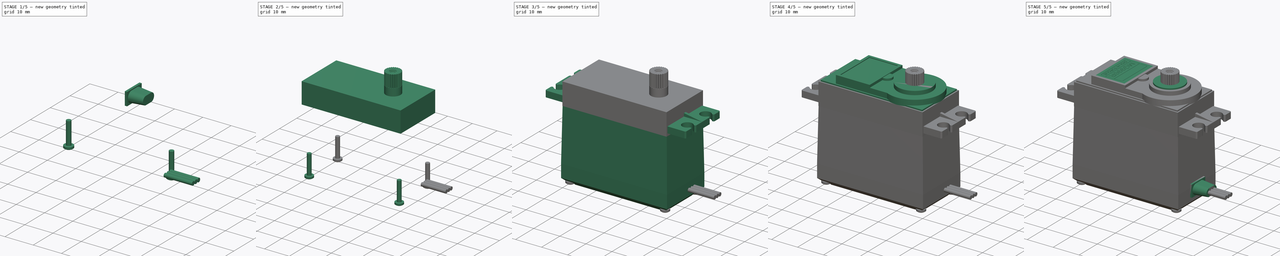
[diagram: build sequence overview — one tinted view per stage of 5, left to right]
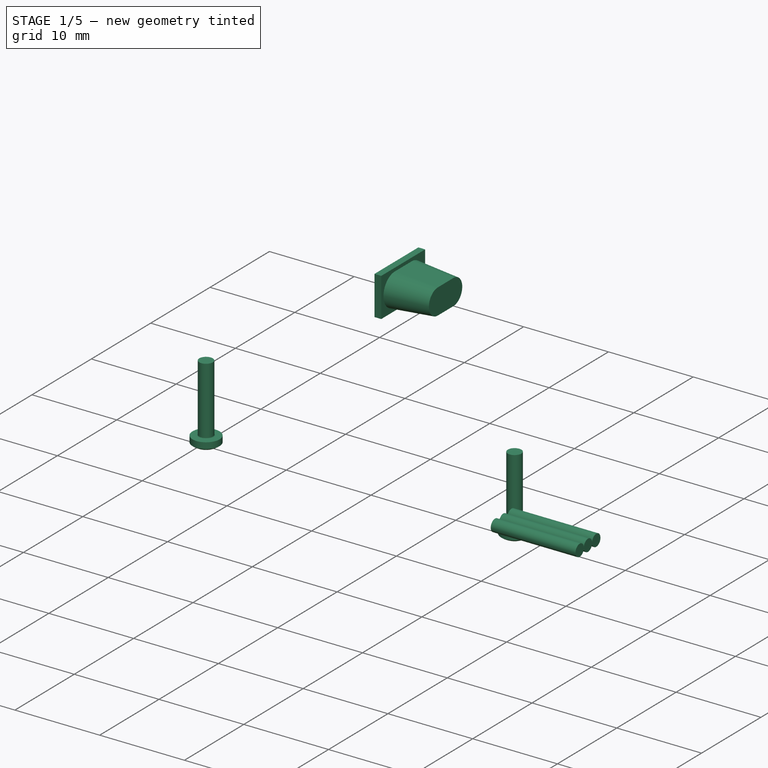
[diagram: stage 1 of 5 — iso view after this stage's code; geometry added in this stage tinted green]
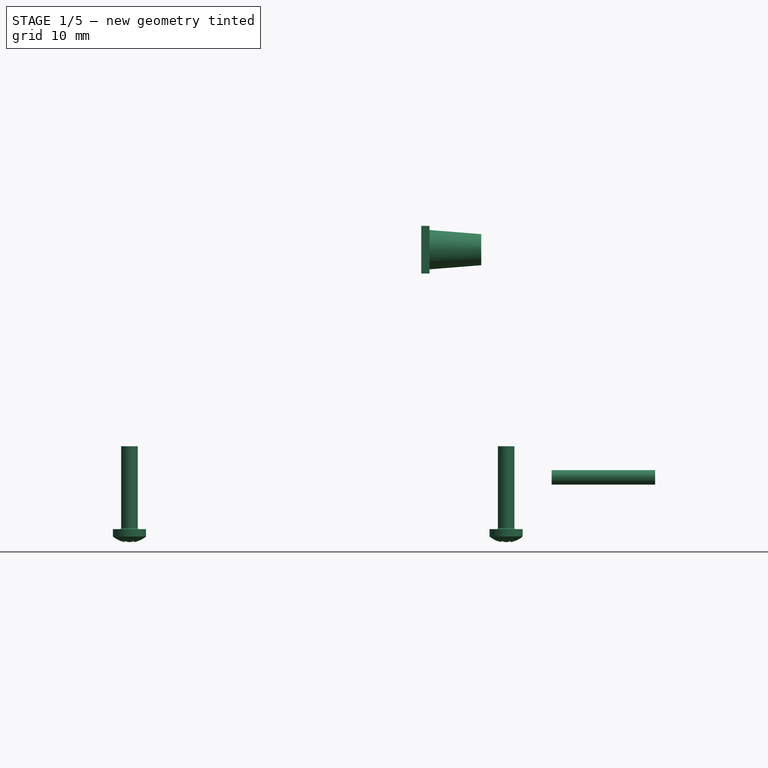
[diagram: stage 1 of 5 — front view after this stage's code; geometry added in this stage tinted green]
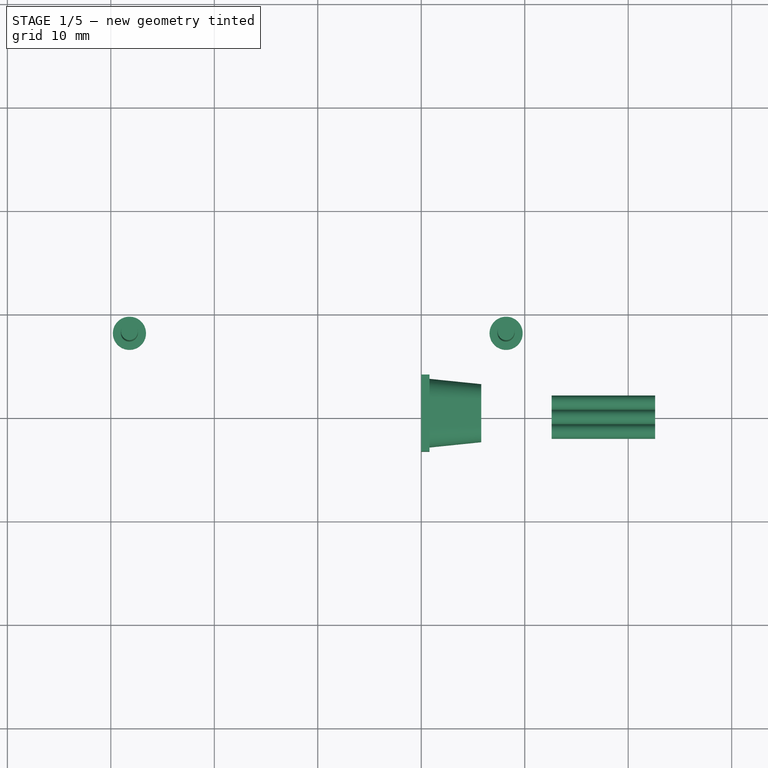
[diagram: stage 1 of 5 — top view after this stage's code; geometry added in this stage tinted green]
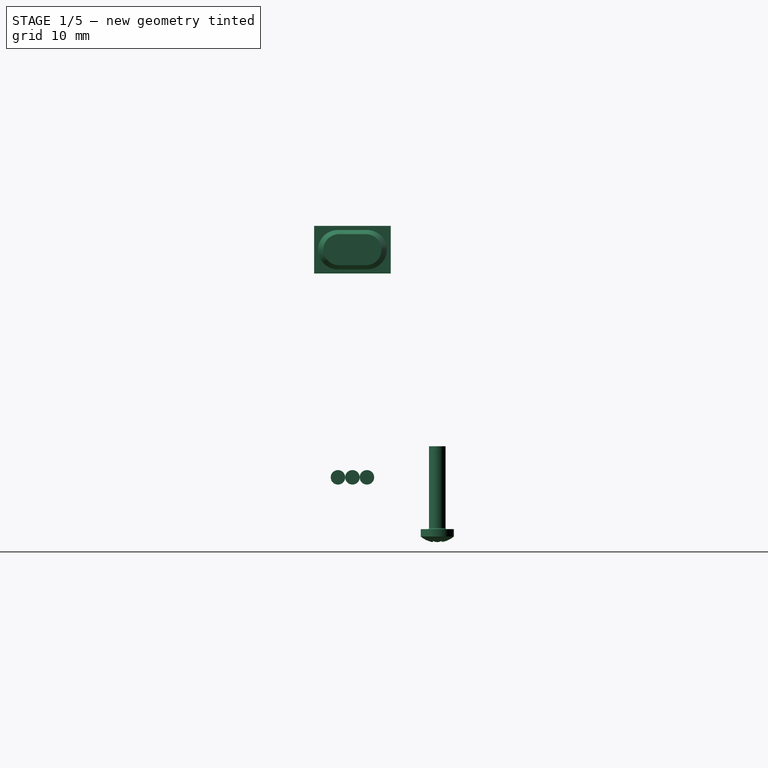
[diagram: stage 1 of 5 — right view after this stage's code; geometry added in this stage tinted green]
FCSTD DOCUMENT  (FreeCAD 0.21R33771 (Git))
Label: mg996R_v2
License: All rights reserved
LicenseURL: http://en.wikipedia.org/wiki/All_rights_reserved
objects: Sketcher::SketchObject×25, PartDesign::Pad×14, PartDesign::Pocket×8, PartDesign::Body×4, Part::Part2DObjectPython×4, Part::FeaturePython×4, Part::Cylinder×3, PartDesign::Plane×2, PartDesign::Mirrored×1, PartDesign::Chamfer×1, PartDesign::Hole×1, PartDesign::PolarPattern×1, App::TextDocument×1, Part::Feature×1, PartDesign::AdditiveLoft×1, Part::Compound×1
note: 96 computed .brp shape members not serialized (recipe doc carries the construction recipe); baked Part::Feature solids carry a one-line shape summary decoded from their .brp

FEATURE [Part::FeaturePython] Screw002  label="M1.6x8-Screw005"  # Fasteners workbench fastener (typed FeaturePython)
  Placement = pos=(-28.2,8.2,-27) rot=(1,0,0;3.14159rad)
  diameter = 1
  invert = false
  leftHanded = false
  length = 4
  lengthCustom = 8
  matchOuter = false
  offset = 0
  thread = false
  type = 46
FEATURE [Part::FeaturePython] Screw003  label="M1.6x8-Screw006"  # Fasteners workbench fastener (typed FeaturePython)
  Placement = pos=(8.2,8.2,-27) rot=(1,0,0;3.14159rad)
  diameter = 1
  invert = false
  leftHanded = false
  length = 4
  lengthCustom = 8
  matchOuter = false
  offset = 0
  thread = false
  type = 46
FEATURE [Sketcher::SketchObject] Sketch023
  FullyConstrained = true
  MapMode = 5
  Placement = pos=(0,0,0) rot=(0.57735,0.57735,0.57735;2.0944rad)
  Support = -> [YZ_Plane003]
  sketch-geometry (5):
    g0: LineSegment StartX=3.7 StartY=-2.3 StartZ=0 EndX=3.7 EndY=2.3 EndZ=0
    g1: LineSegment StartX=3.7 StartY=2.3 StartZ=0 EndX=-3.7 EndY=2.3 EndZ=0
    g2: LineSegment StartX=-3.7 StartY=2.3 StartZ=0 EndX=-3.7 EndY=-2.3 EndZ=0
    g3: LineSegment StartX=-3.7 StartY=-2.3 StartZ=0 EndX=3.7 EndY=-2.3 EndZ=0
    g4: GeomPoint X=0 Y=0 Z=0
  constraints (12):
    c: Coincident(g0,g1)
    c: Coincident(g1,g2)
    c: Coincident(g2,g3)
    c: Coincident(g3,g0)
    c: Horizontal(g1)
    c: Horizontal(g3)
    c: Vertical(g0)
    c: Vertical(g2)
    c: Symmetric(g1,g0,g4)
    c: Coincident(g4,g-1)
    c: DistanceX(g3,g3) = 7.4
    c: DistanceY(g0,g0) = 4.6
FEATURE [PartDesign::Pad] Pad013
  Direction = (1,-2e-16,3e-16)
  Length = 0.8
  Length2 = 10
  Placement = pos=(0,0,0) rot=(0.57735,0.57735,0.57735;2.0944rad)
  Profile = -> Sketch023
  ReferenceAxis = -> Sketch023 [N_Axis]
  Type = 0
FEATURE [Sketcher::SketchObject] Sketch024
  FullyConstrained = false
  MapMode = 5
  Placement = pos=(0.8,-2e-16,2e-16) rot=(0.57735,0.57735,0.57735;2.0944rad)
  Support = -> [Pad013]
  sketch-geometry (4):
    g0: ArcOfCircle CenterX=-1.42008 CenterY=0 CenterZ=0 NormalX=0 NormalY=0 NormalZ=1 AngleXU=0 Radius=1.9 StartAngle=1.5708 EndAngle=4.71239
    g1: ArcOfCircle CenterX=1.42008 CenterY=0 CenterZ=0 NormalX=0 NormalY=0 NormalZ=1 AngleXU=0 Radius=1.9 StartAngle=4.71239 EndAngle=7.85398
    g2: LineSegment StartX=-1.42008 StartY=-1.9 StartZ=0 EndX=1.42008 EndY=-1.9 EndZ=0
    g3: LineSegment StartX=1.42008 StartY=1.9 StartZ=0 EndX=-1.42008 EndY=1.9 EndZ=0
  constraints (8):
    c: Tangent(g0,g2) = -1.5708
    c: Tangent(g2,g1) = -1.5708
    c: Tangent(g1,g3) = -1.5708
    c: Tangent(g3,g0) = -1.5708
    c: Equal(g0,g1)
    c: PointOnObject(g0,g-1)
    c: Symmetric(g1,g0,g-2)
    c: DistanceY(g1,g1) = 3.8
FEATURE [Sketcher::SketchObject] Sketch025
  AttachmentOffset = pos=(0,0,5) rot=(0,0,1;0rad)
  FullyConstrained = false
  MapMode = 5
  Placement = pos=(5.8,-1.3e-15,1.3e-15) rot=(0.57735,0.57735,0.57735;2.0944rad)
  Support = -> [Pad013]
  sketch-geometry (4):
    g0: ArcOfCircle CenterX=-1.30738 CenterY=0 CenterZ=0 NormalX=0 NormalY=0 NormalZ=1 AngleXU=0 Radius=1.5 StartAngle=1.5708 EndAngle=4.71239
    g1: ArcOfCircle CenterX=1.30738 CenterY=0 CenterZ=0 NormalX=0 NormalY=0 NormalZ=1 AngleXU=0 Radius=1.5 StartAngle=4.71239 EndAngle=7.85398
    g2: LineSegment StartX=-1.30738 StartY=-1.5 StartZ=0 EndX=1.30738 EndY=-1.5 EndZ=0
    g3: LineSegment StartX=1.30738 StartY=1.5 StartZ=0 EndX=-1.30738 EndY=1.5 EndZ=0
  constraints (8):
    c: Tangent(g0,g2) = -1.5708
    c: Tangent(g2,g1) = -1.5708
    c: Tangent(g1,g3) = -1.5708
    c: Tangent(g3,g0) = -1.5708
    c: Equal(g0,g1)
    c: PointOnObject(g0,g-1)
    c: DistanceY(g1,g1) = 3
    c: Symmetric(g0,g1,g-2)
FEATURE [PartDesign::AdditiveLoft] AdditiveLoft
  BaseFeature = -> Pad013
  Closed = false
  Placement = pos=(0,0,0) rot=(0.57735,0.57735,0.57735;2.0944rad)
  Profile = -> Sketch024
  Ruled = false
  Sections = -> [Sketch025]
FEATURE [PartDesign::Body] Body004  label="sortie_fils"
  Group = -> [Sketch023,Pad013,Sketch024,Sketch025,AdditiveLoft]
  Origin = -> Origin003
  Placement = pos=(10.2,0,-22) rot=(0,0,1;0rad)
  Tip = -> AdditiveLoft
FEATURE [Part::Cylinder] Cylinder  label="Cylindre"
  Angle = 360
  AttacherType = Attacher::AttachEngine3D
  FirstAngle = 0
  Height = 10
  Placement = pos=(12.6,0,-22) rot=(0,1,0;1.5708rad)
  Radius = 0.7
  SecondAngle = 0
FEATURE [Part::Cylinder] Cylinder001  label="Cylindre001"
  Angle = 360
  AttacherType = Attacher::AttachEngine3D
  FirstAngle = 0
  Height = 10
  Placement = pos=(12.6,1.4,-22) rot=(0,1,0;1.5708rad)
  Radius = 0.7
  SecondAngle = 0
FEATURE [Part::Cylinder] Cylinder002  label="Cylindre002"
  Angle = 360
  AttacherType = Attacher::AttachEngine3D
  FirstAngle = 0
  Height = 10
  Placement = pos=(12.6,-1.4,-22) rot=(0,1,0;1.5708rad)
  Radius = 0.7
  SecondAngle = 0
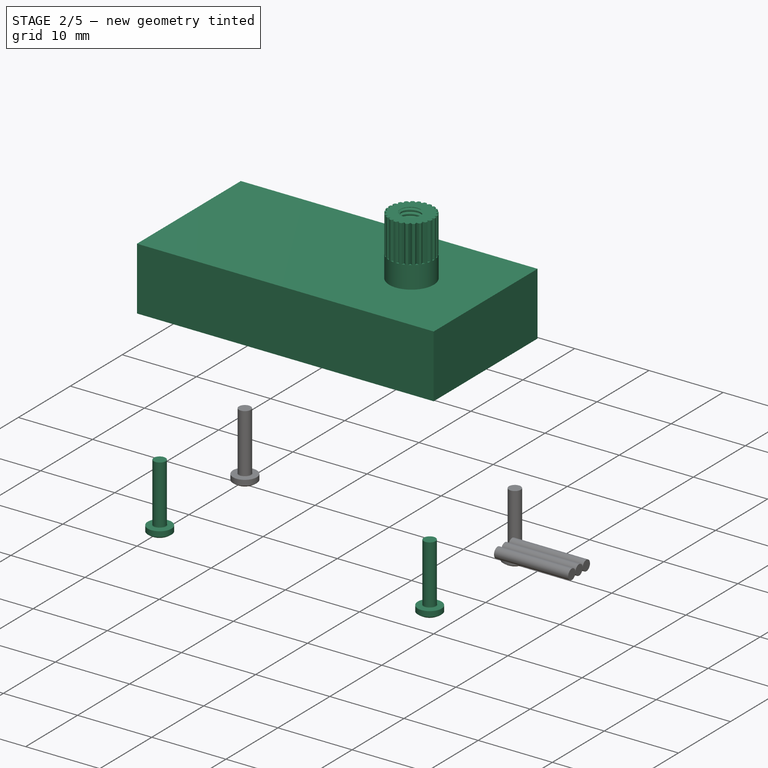
[diagram: stage 2 of 5 — iso view after this stage's code; geometry added in this stage tinted green]
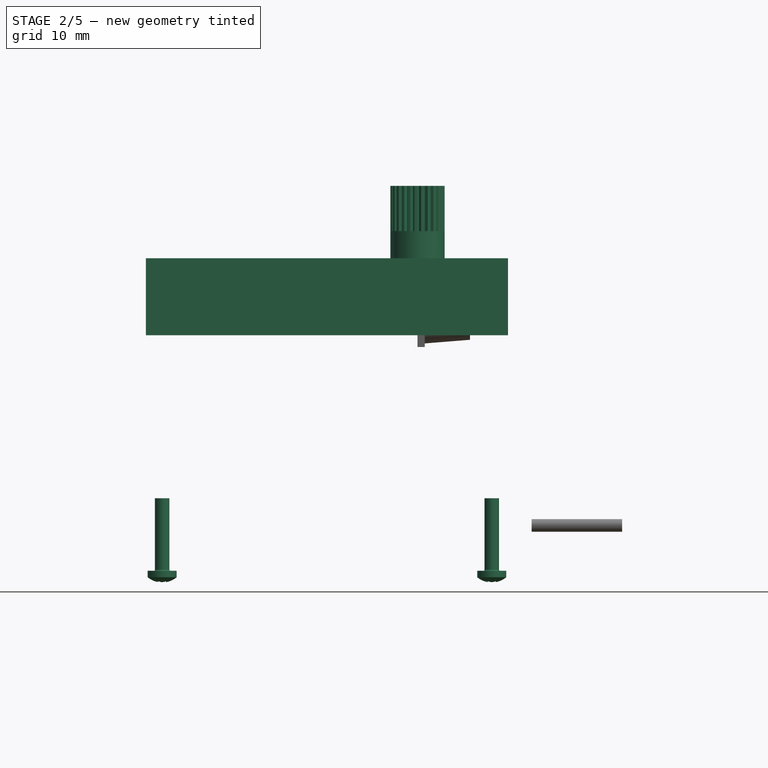
[diagram: stage 2 of 5 — front view after this stage's code; geometry added in this stage tinted green]
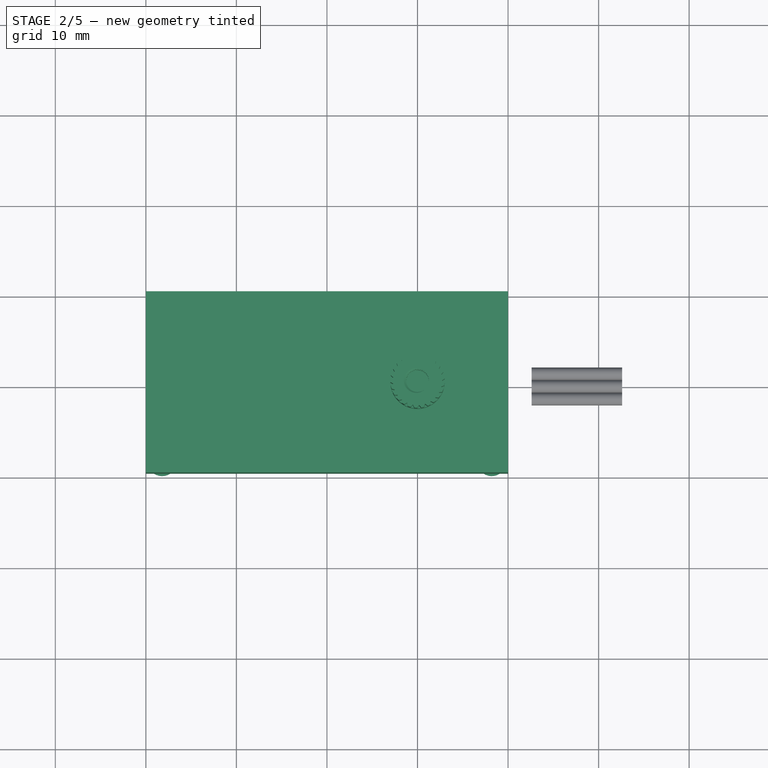
[diagram: stage 2 of 5 — top view after this stage's code; geometry added in this stage tinted green]
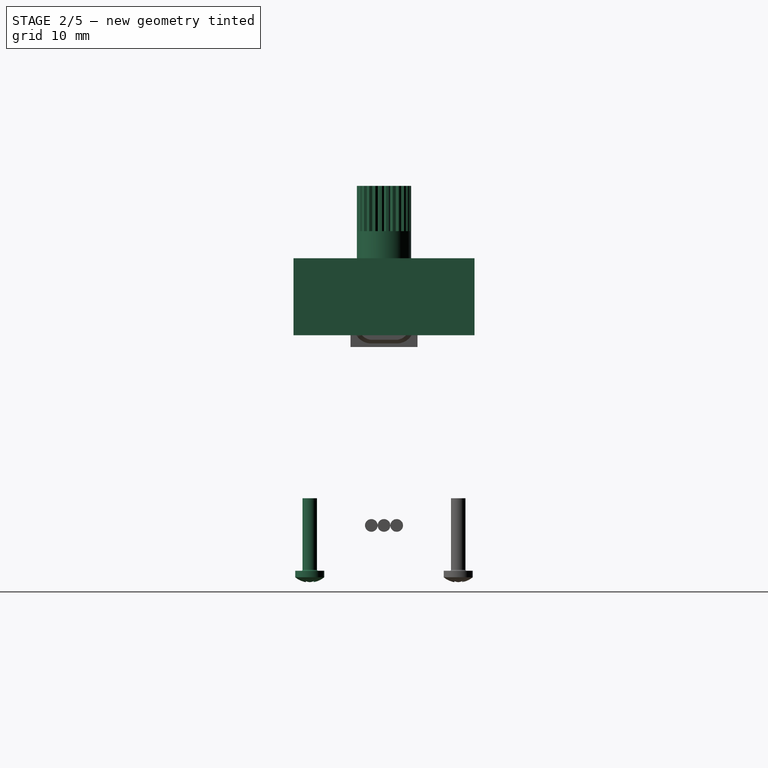
[diagram: stage 2 of 5 — right view after this stage's code; geometry added in this stage tinted green]
FEATURE [Sketcher::SketchObject] Sketch
  FullyConstrained = true
  MapMode = 5
  Support = -> [XY_Plane]
  sketch-geometry (5):
    g0: LineSegment StartX=-30 StartY=10 StartZ=0 EndX=-30 EndY=-10 EndZ=0
    g1: LineSegment StartX=-30 StartY=-10 StartZ=0 EndX=10 EndY=-10 EndZ=0
    g2: LineSegment StartX=10 StartY=-10 StartZ=0 EndX=10 EndY=10 EndZ=0
    g3: LineSegment StartX=10 StartY=10 StartZ=0 EndX=-30 EndY=10 EndZ=0
    g4: GeomPoint X=-10 Y=0 Z=0
  constraints (13):
    c: Coincident(g0,g1)
    c: Coincident(g1,g2)
    c: Coincident(g2,g3)
    c: Coincident(g3,g0)
    c: Horizontal(g1)
    c: Horizontal(g3)
    c: Vertical(g0)
    c: Vertical(g2)
    c: Symmetric(g1,g0,g4)
    c: PointOnObject(g4,g-1)
    c: DistanceY(g2,g2) = 20
    c: DistanceX(g3,g3) = 40
    c: DistanceX(g-1,g2) = 10
FEATURE [PartDesign::Pad] Pad
  Direction = (0,0,1)
  Length = 7.5
  Length2 = 1
  Profile = -> Sketch
  ReferenceAxis = -> Sketch [N_Axis]
  Type = 4
FEATURE [PartDesign::Body] Body001  label="etiquette"
  Group = -> [Sketch016,Pad011,Sketch017,Pocket004,Sketch018,Clone2D,Pocket005,Clone2D001,Sketch019,Pocket006]
  Origin = -> Origin001
  Placement = pos=(-23,0,10.8) rot=(0,0,-1;1.5708rad)
  Tip = -> Pocket006
FEATURE [Sketcher::SketchObject] Sketch020
  FullyConstrained = true
  MapMode = 5
  Support = -> [XY_Plane002]
  sketch-geometry (1):
    g0: Circle CenterX=0 CenterY=0 CenterZ=0 NormalX=0 NormalY=0 NormalZ=1 AngleXU=0 Radius=3
  constraints (2):
    c: Coincident(g0,g-1)
    c: Diameter(g0) = 6
FEATURE [PartDesign::Pad] Pad012
  Direction = (0,0,1)
  Length = 15.5
  Length2 = 10
  Profile = -> Sketch020
  ReferenceAxis = -> Sketch020 [N_Axis]
  Type = 0
FEATURE [Sketcher::SketchObject] Sketch021
  FullyConstrained = false
  MapMode = 5
  Placement = pos=(0,0,15.5) rot=(0,0,1;0rad)
  Support = -> [Pad012]
  sketch-geometry (1):
    g0: Circle CenterX=0 CenterY=0 CenterZ=0 NormalX=0 NormalY=0 NormalZ=1 AngleXU=0 Radius=1.15515
  constraints (1):
    c: Coincident(g0,g-1)
FEATURE [PartDesign::Hole] Hole
  BaseFeature = -> Pad012
  CustomThreadClearance = 0
  Depth = 8
  DepthType = 0
  Diameter = 2.52
  DrillForDepth = false
  DrillPoint = 1
  DrillPointAngle = 118
  HoleCutCountersinkAngle = 90
  HoleCutCustomValues = false
  HoleCutDepth = 0
  HoleCutDiameter = 6.1
  HoleCutType = 0
  ModelThread = true
  Profile = -> Sketch021
  Tapered = false
  TaperedAngle = 90
  ThreadClass = 0
  ThreadDepth = 8
  ThreadDepthType = 0
  ThreadDirection = 0
  ThreadFit = 0
  ThreadSize = 9
  ThreadType = 1
  Threaded = true
  UseCustomThreadClearance = false
FEATURE [Sketcher::SketchObject] Sketch022
  ExternalGeometry = -> [Hole]
  FullyConstrained = false
  MapMode = 5
  Placement = pos=(0,0,15.5) rot=(0,0,1;0rad)
  Support = -> [Hole]
  sketch-geometry (5):
    g0: LineSegment StartX=0 StartY=0 StartZ=0 EndX=2.97634 EndY=0.376 EndZ=0
    g1: LineSegment StartX=0 StartY=0 StartZ=0 EndX=2.97634 EndY=-0.376 EndZ=0
    g2: LineSegment StartX=2.69803 StartY=0 StartZ=0 EndX=3.13135 EndY=0.315821 EndZ=0
    g3: LineSegment StartX=3.13135 StartY=0.315821 StartZ=0 EndX=3.13135 EndY=-0.315821 EndZ=0
    g4: LineSegment StartX=3.13135 StartY=-0.315821 StartZ=0 EndX=2.69803 EndY=0 EndZ=0
  constraints (11):
    c: Coincident(g0,g-3)
    c: PointOnObject(g0,g-3)
    c: Coincident(g1,g0)
    c: PointOnObject(g1,g-3)
    c: Angle(g-1,g0) = 0.125664
    c: Angle(g1,g-1) = 0.125664
    c: PointOnObject(g2,g-1)
    c: Coincident(g2,g3)
    c: Coincident(g3,g4)
    c: Coincident(g4,g2)
    c: Symmetric(g2,g3,g-1)
FEATURE [PartDesign::Pocket] Pocket007
  BaseFeature = -> Hole
  Direction = (0,0,-1)
  Length = 5
  Length2 = 5
  Profile = -> Sketch022
  ReferenceAxis = -> Sketch022 [N_Axis]
  Type = 0
FEATURE [PartDesign::PolarPattern] PolarPattern
  Angle = 360
  Axis = -> Sketch022 [N_Axis]
  BaseFeature = -> Pocket007
  Occurrences = 25
  Originals = -> [Pocket007]
FEATURE [PartDesign::Body] Body002  label="axe"
  Group = -> [Sketch020,Pad012,Sketch021,Hole,Sketch022,Pocket007,PolarPattern]
  Origin = -> Origin002
  Tip = -> PolarPattern
FEATURE [App::TextDocument] Text_document  label="Text document"
  Text = A more powerful servomotor than the MG90. the genuine one is from Towerpro and there are many imitations on Chinese sales sites, with sometimes size differences.\nSize of the body is 20x40 mm, fixing holes 10x49 mm total size 20x54x45.3H.\nI will add models of 4 kinds of arm soon.
FEATURE [Part::Feature] Body003  label="etiquette001"
  Placement = pos=(-23,0,10.8) rot=(0,0,-1;1.5708rad)
  shape: bbox 11 x 16 x 0.2 mm, 405 faces (baked)
FEATURE [Part::FeaturePython] Screw  label="M1.6x8-Screw"  # Fasteners workbench fastener (typed FeaturePython)
  Placement = pos=(-28.2,-8.2,-27) rot=(1,0,0;3.14159rad)
  diameter = 1
  invert = false
  leftHanded = false
  length = 4
  lengthCustom = 8
  matchOuter = false
  offset = 0
  thread = false
  type = 46
FEATURE [Part::FeaturePython] Screw001  label="M1.6x8-Screw004"  # Fasteners workbench fastener (typed FeaturePython)
  Placement = pos=(8.2,-8.2,-27) rot=(1,0,0;3.14159rad)
  diameter = 1
  invert = false
  leftHanded = false
  length = 4
  lengthCustom = 8
  matchOuter = false
  offset = 0
  thread = false
  type = 46
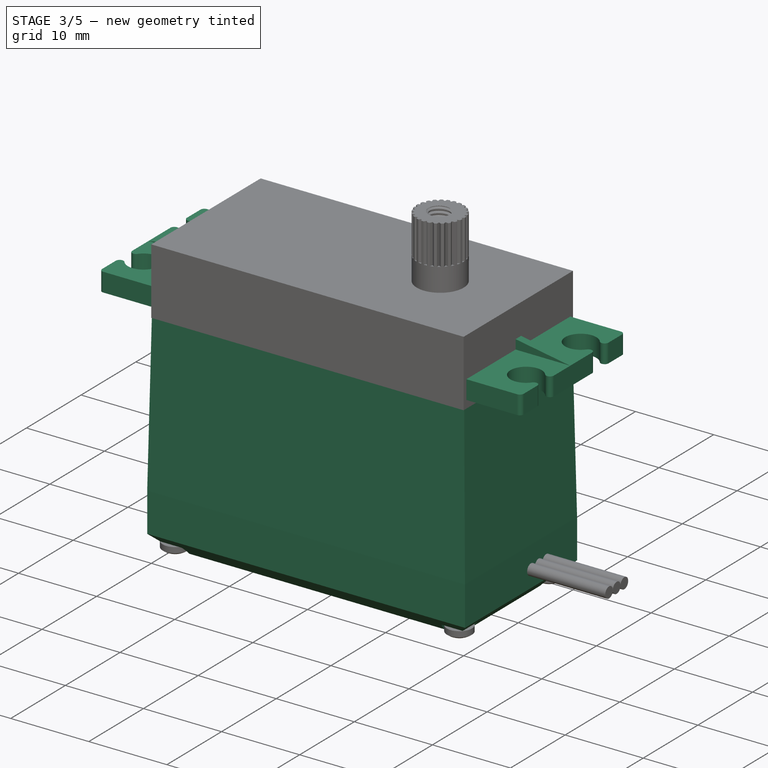
[diagram: stage 3 of 5 — iso view after this stage's code; geometry added in this stage tinted green]
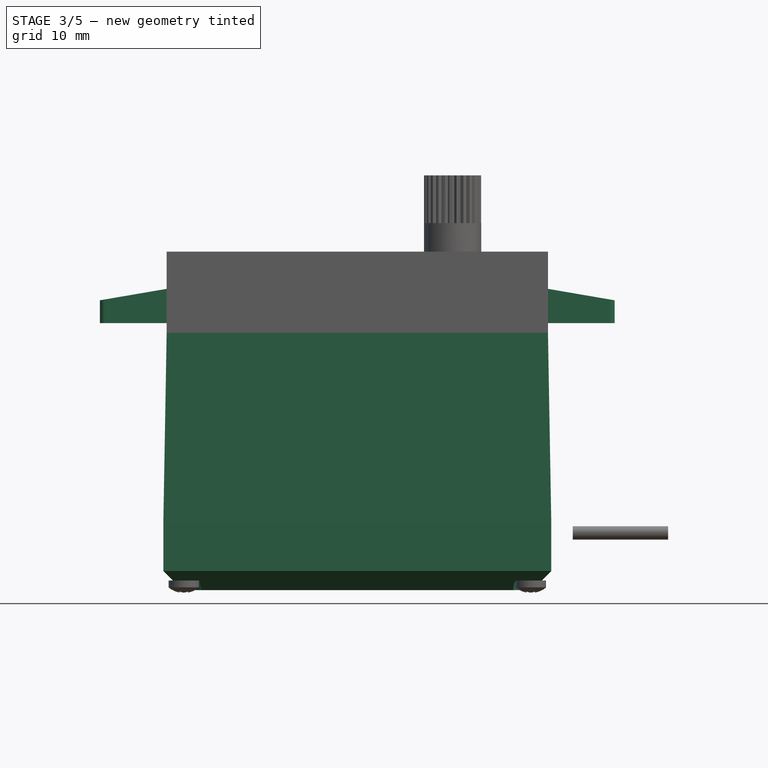
[diagram: stage 3 of 5 — front view after this stage's code; geometry added in this stage tinted green]
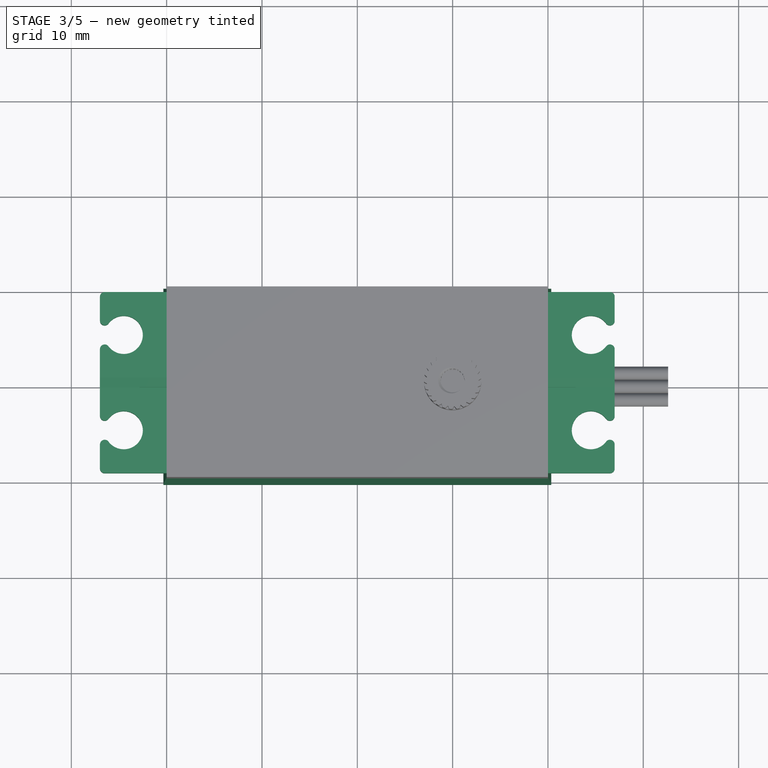
[diagram: stage 3 of 5 — top view after this stage's code; geometry added in this stage tinted green]
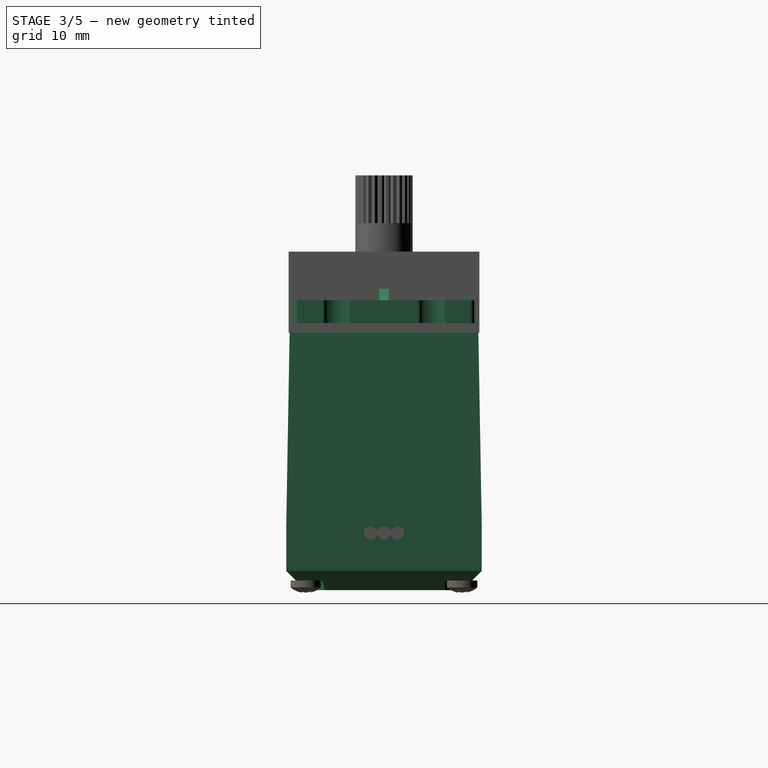
[diagram: stage 3 of 5 — right view after this stage's code; geometry added in this stage tinted green]
FEATURE [Sketcher::SketchObject] Sketch001
  ExternalGeometry = -> [Pad]
  FullyConstrained = true
  MapMode = 5
  Support = -> [XY_Plane]
  sketch-geometry (14):
    g0: LineSegment StartX=10 StartY=9.5 StartZ=0 EndX=16.5 EndY=9.5 EndZ=0
    g1: ArcOfCircle CenterX=16.5 CenterY=9 CenterZ=0 NormalX=0 NormalY=0 NormalZ=1 AngleXU=0 Radius=0.5 StartAngle=-1.8e-15 EndAngle=1.5708
    g2: ArcOfCircle CenterX=14.5 CenterY=5 CenterZ=0 NormalX=0 NormalY=0 NormalZ=1 AngleXU=0 Radius=2 StartAngle=0.643501 EndAngle=5.63968
    g3: ArcOfCircle CenterX=16.5 CenterY=3.5 CenterZ=0 NormalX=0 NormalY=0 NormalZ=1 AngleXU=0 Radius=0.5 StartAngle=-3.7748e-12 EndAngle=2.49809
    g4: LineSegment StartX=17 StartY=3.5 StartZ=0 EndX=17 EndY=-3.5 EndZ=0
    g5: LineSegment StartX=17 StartY=9 StartZ=0 EndX=17 EndY=6.5 EndZ=0
    g6: ArcOfCircle CenterX=16.5 CenterY=6.5 CenterZ=0 NormalX=0 NormalY=0 NormalZ=1 AngleXU=0 Radius=0.5 StartAngle=3.78509 EndAngle=6.28319
    g7: LineSegment StartX=10 StartY=-9.5 StartZ=0 EndX=16.5 EndY=-9.5 EndZ=0
    g8: ArcOfCircle CenterX=16.5 CenterY=-9 CenterZ=0 NormalX=0 NormalY=0 NormalZ=1 AngleXU=0 Radius=0.5 StartAngle=4.71239 EndAngle=6.28319
    g9: ArcOfCircle CenterX=14.5 CenterY=-5 CenterZ=0 NormalX=0 NormalY=0 NormalZ=1 AngleXU=0 Radius=2 StartAngle=0.643501 EndAngle=5.63968
    g10: ArcOfCircle CenterX=16.5 CenterY=-3.5 CenterZ=0 NormalX=0 NormalY=0 NormalZ=1 AngleXU=0 Radius=0.5 StartAngle=3.78509 EndAngle=6.28319
    g11: LineSegment StartX=17 StartY=-9 StartZ=0 EndX=17 EndY=-6.5 EndZ=0
    g12: ArcOfCircle CenterX=16.5 CenterY=-6.5 CenterZ=0 NormalX=0 NormalY=0 NormalZ=1 AngleXU=0 Radius=0.5 StartAngle=-9e-16 EndAngle=2.49809
    g13: LineSegment StartX=10 StartY=9.5 StartZ=0 EndX=10 EndY=-9.5 EndZ=0
  constraints (37):
    c: Horizontal(g0)
    c: Coincident(g3,g2)
    c: Coincident(g4,g3)
    c: DistanceY(g-1,g2) = 5
    c: Diameter(g2) = 4
    c: Diameter(g1) = 1
    c: Tangent(g1,g0) = 1.5708
    c: PointOnObject(g0,g-3)
    c: DistanceY(g0,g-3) = 0.5
    c: DistanceX(g0,g1) = 7
    c: Vertical(g1,g3)
    c: Vertical(g5)
    c: Vertical(g6,g3)
    c: Vertical(g2,g2)
    c: Horizontal(g7)
    c: Diameter(g9) = 4
    c: Diameter(g8) = 1
    c: Tangent(g8,g7) = -1.5708
    c: Vertical(g11)
    c: Coincident(g13,g0)
    c: Coincident(g13,g7)
    c: DistanceX(g0,g2) = 4.5
    c: Tangent(g2,g6) = 1.5708
    c: Symmetric(g9,g2,g-1)
    c: Vertical(g2,g9)
    c: Vertical(g9,g9)
    c: Tangent(g9,g10) = 1.5708
    c: Tangent(g9,g12) = 1.5708
    c: Symmetric(g7,g0,g-1)
    c: Tangent(g1,g5) = 1.5708
    c: Tangent(g5,g6) = 1.5708
    c: Vertical(g4,g11)
    c: Tangent(g8,g11) = -1.5708
    c: Tangent(g11,g12) = -1.5708
    c: Tangent(g4,g10) = 1.5708
    c: DistanceY(g-1,g3) = 3.5
    c: Symmetric(g3,g4,g-1)
FEATURE [PartDesign::Pad] Pad001  label="accroche"
  BaseFeature = -> Pad
  Direction = (0,0,1)
  Length = 2.4
  Length2 = 10
  Profile = -> Sketch001
  ReferenceAxis = -> Sketch001 [N_Axis]
  Type = 0
FEATURE [PartDesign::Plane] DatumPlane  label="YZ_sym"
  AttachmentOffset = pos=(0,0,-10) rot=(0,0,1;0rad)
  Length = 60.2956
  MapMode = 5
  Placement = pos=(-10,2.2e-15,-2.2e-15) rot=(0.57735,0.57735,0.57735;2.0944rad)
  ResizeMode = 0
  Support = -> [YZ_Plane]
  Width = 63.2956
FEATURE [Sketcher::SketchObject] Sketch002
  ExternalGeometry = -> [Pad001]
  FullyConstrained = true
  MapMode = 5
  Placement = pos=(0,0,0) rot=(1,0,0;1.5708rad)
  Support = -> [XZ_Plane]
  sketch-geometry (3):
    g0: LineSegment StartX=17 StartY=2.4 StartZ=0 EndX=10 EndY=2.4 EndZ=0
    g1: LineSegment StartX=10 StartY=3.6 StartZ=0 EndX=17 EndY=2.4 EndZ=0
    g2: LineSegment StartX=10 StartY=3.6 StartZ=0 EndX=10 EndY=2.4 EndZ=0
  constraints (7):
    c: Coincident(g0,g-4)
    c: Coincident(g0,g-3)
    c: Coincident(g1,g0)
    c: Coincident(g2,g1)
    c: Coincident(g2,g0)
    c: Vertical(g2)
    c: DistanceY(g2,g2) = 1.2
FEATURE [PartDesign::Pad] Pad002  label="renfort_accroche"
  BaseFeature = -> Pad001
  Direction = (0,-1,-2e-16)
  Length = 1
  Length2 = 10
  Midplane = true
  Profile = -> Sketch002
  ReferenceAxis = -> Sketch002 [N_Axis]
  Type = 0
FEATURE [PartDesign::Mirrored] Mirrored  label="accroche_symetrique"
  BaseFeature = -> Pad002
  MirrorPlane = -> DatumPlane
  Originals = -> [Pad001,Pad002]
FEATURE [Sketcher::SketchObject] Sketch004
  ExternalGeometry = -> [DatumPlane]
  FullyConstrained = true
  MapMode = 5
  Placement = pos=(0,0,-1) rot=(1,0,0;3.14159rad)
  Support = -> [Mirrored]
  sketch-geometry (5):
    g0: LineSegment StartX=-30 StartY=9.9 StartZ=0 EndX=-30 EndY=-9.9 EndZ=0
    g1: LineSegment StartX=-30 StartY=-9.9 StartZ=0 EndX=10 EndY=-9.9 EndZ=0
    g2: LineSegment StartX=10 StartY=-9.9 StartZ=0 EndX=10 EndY=9.9 EndZ=0
    g3: LineSegment StartX=10 StartY=9.9 StartZ=0 EndX=-30 EndY=9.9 EndZ=0
    g4: GeomPoint X=-10 Y=0 Z=0
  constraints (13):
    c: Coincident(g0,g1)
    c: Coincident(g1,g2)
    c: Coincident(g2,g3)
    c: Coincident(g3,g0)
    c: Horizontal(g1)
    c: Horizontal(g3)
    c: Vertical(g0)
    c: Vertical(g2)
    c: Symmetric(g1,g0,g4)
    c: PointOnObject(g4,g-1)
    c: PointOnObject(g4,g-3)
    c: DistanceY(g0,g0) = 19.8
    c: DistanceX(g3,g3) = 40
FEATURE [PartDesign::Pad] Pad003  label="corps_avec_depouille"
  BaseFeature = -> Mirrored
  Direction = (0,0,-1)
  Length = 20
  Length2 = 10
  Profile = -> Sketch004
  ReferenceAxis = -> Sketch004 [N_Axis]
  TaperAngle = 1
  Type = 0
FEATURE [Sketcher::SketchObject] Sketch005
  ExternalGeometry = -> [Pad003]
  FullyConstrained = true
  MapMode = 5
  Placement = pos=(0,0,-21) rot=(1,0,0;3.14159rad)
  Support = -> [Pad003]
  sketch-geometry (4):
    g0: LineSegment StartX=-30.3491 StartY=10.2491 StartZ=0 EndX=10.3491 EndY=10.2491 EndZ=0
    g1: LineSegment StartX=10.3491 StartY=10.2491 StartZ=0 EndX=10.3491 EndY=-10.2491 EndZ=0
    g2: LineSegment StartX=10.3491 StartY=-10.2491 StartZ=0 EndX=-30.3491 EndY=-10.2491 EndZ=0
    g3: LineSegment StartX=-30.3491 StartY=-10.2491 StartZ=0 EndX=-30.3491 EndY=10.2491 EndZ=0
  constraints (12):
    c: DistanceY(g-4,g-3) = 20.4982
    c: DistanceX(g-3,g-3) = 40.6982
    c: Coincident(g0,g1)
    c: Coincident(g1,g2)
    c: Coincident(g2,g3)
    c: Coincident(g3,g0)
    c: Horizontal(g0)
    c: Horizontal(g2)
    c: Vertical(g1)
    c: Vertical(g3)
    c: Coincident(g0,g-3)
    c: Coincident(g1,g-4)
FEATURE [PartDesign::Pad] Pad004  label="bas"
  BaseFeature = -> Pad003
  Direction = (0,0,-1)
  Length = 7
  Length2 = 10
  Profile = -> Sketch005
  ReferenceAxis = -> Sketch005 [N_Axis]
  Type = 0
FEATURE [PartDesign::Chamfer] Chamfer
  Angle = 45
  Base = -> Pad004 [Face42]
  BaseFeature = -> Pad004
  ChamferType = 0
  FlipDirection = false
  Size = 2
  Size2 = 1
  SupportTransform = false
  UseAllEdges = false
FEATURE [PartDesign::Plane] DatumPlane001  label="xy_bottom"
  AttachmentOffset = pos=(0,0,-27) rot=(0,0,1;0rad)
  Length = 73.1355
  MapMode = 5
  Placement = pos=(0,0,-27) rot=(0,0,1;0rad)
  ResizeMode = 0
  Support = -> [XY_Plane]
  Width = 61.1355
FEATURE [Sketcher::SketchObject] Sketch006
  ExternalGeometry = -> [DatumPlane,Chamfer]
  FullyConstrained = true
  MapMode = 5
  Placement = pos=(0,0,-27) rot=(0,0,1;0rad)
  Support = -> [DatumPlane001]
  sketch-geometry (4):
    g0: Circle CenterX=-28.3491 CenterY=-8.2491 CenterZ=0 NormalX=0 NormalY=0 NormalZ=1 AngleXU=0 Radius=2
    g1: Circle CenterX=-28.3491 CenterY=8.2491 CenterZ=0 NormalX=0 NormalY=0 NormalZ=1 AngleXU=0 Radius=2
    g2: Circle CenterX=8.3491 CenterY=-8.2491 CenterZ=0 NormalX=0 NormalY=0 NormalZ=1 AngleXU=0 Radius=2
    g3: Circle CenterX=8.3491 CenterY=8.2491 CenterZ=0 NormalX=0 NormalY=0 NormalZ=1 AngleXU=0 Radius=2
  constraints (8):
    c: Coincident(g0,g-4)
    c: Coincident(g1,g-5)
    c: Diameter(g0) = 4
    c: Coincident(g2,g-6)
    c: Coincident(g3,g-7)
    c: Equal(g0,g1)
    c: Equal(g1,g3)
    c: Equal(g3,g2)
FEATURE [PartDesign::Pocket] Pocket  label="degagement_vis"
  BaseFeature = -> Chamfer
  Direction = (0,0,-1)
  Length = 5
  Length2 = 5
  Profile = -> Sketch006
  ReferenceAxis = -> Sketch006 [N_Axis]
  Type = 0
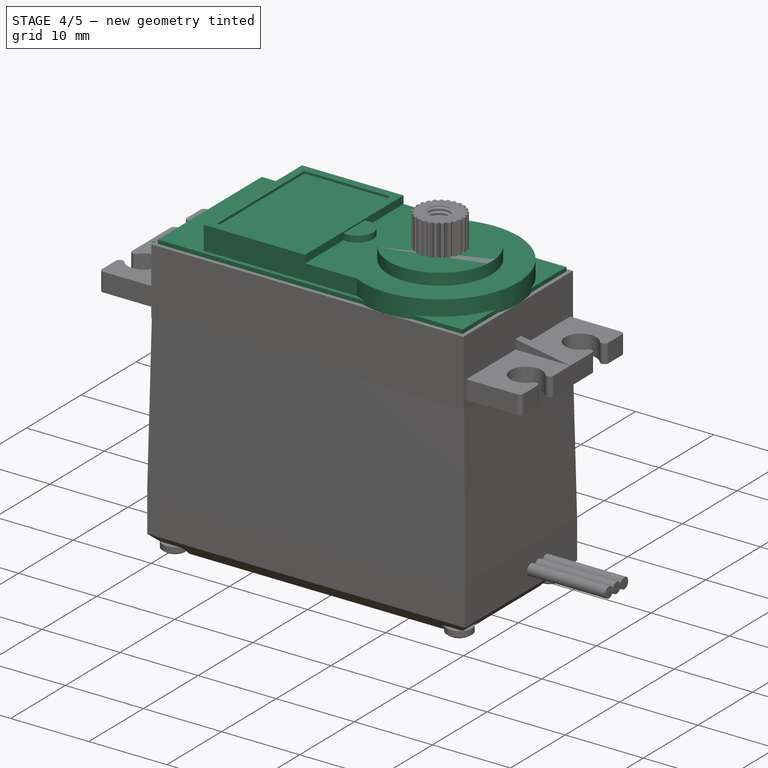
[diagram: stage 4 of 5 — iso view after this stage's code; geometry added in this stage tinted green]
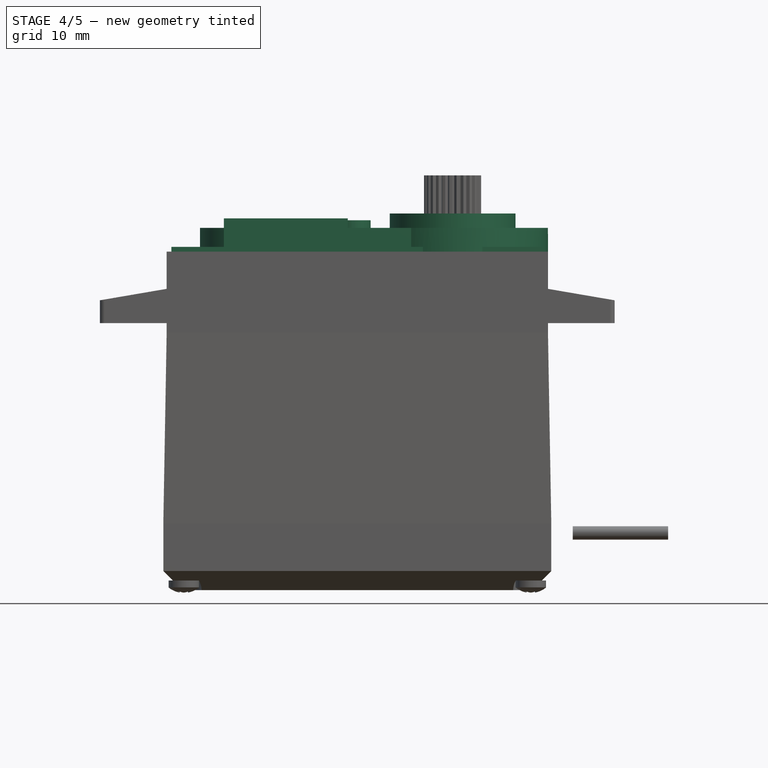
[diagram: stage 4 of 5 — front view after this stage's code; geometry added in this stage tinted green]
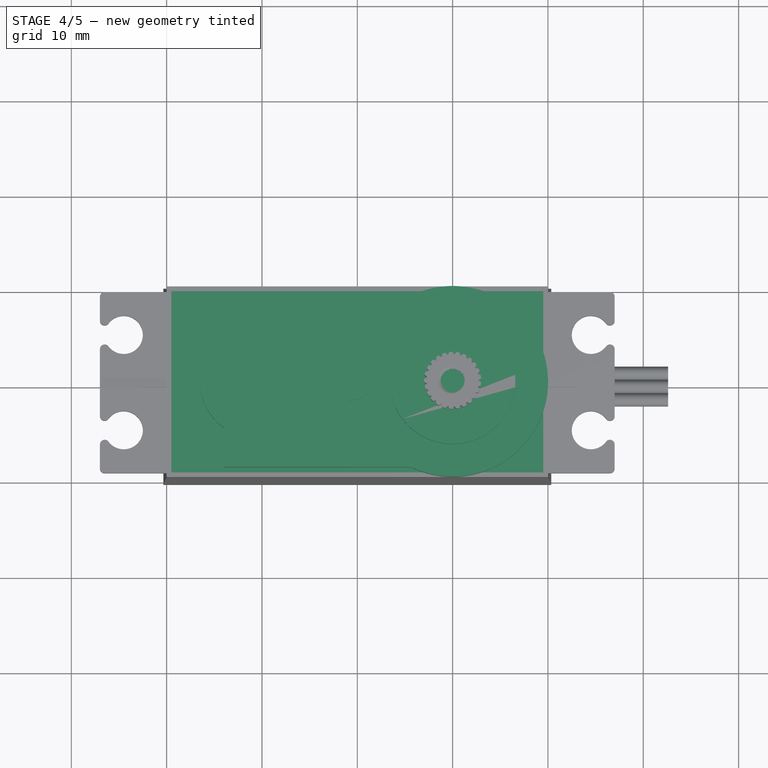
[diagram: stage 4 of 5 — top view after this stage's code; geometry added in this stage tinted green]
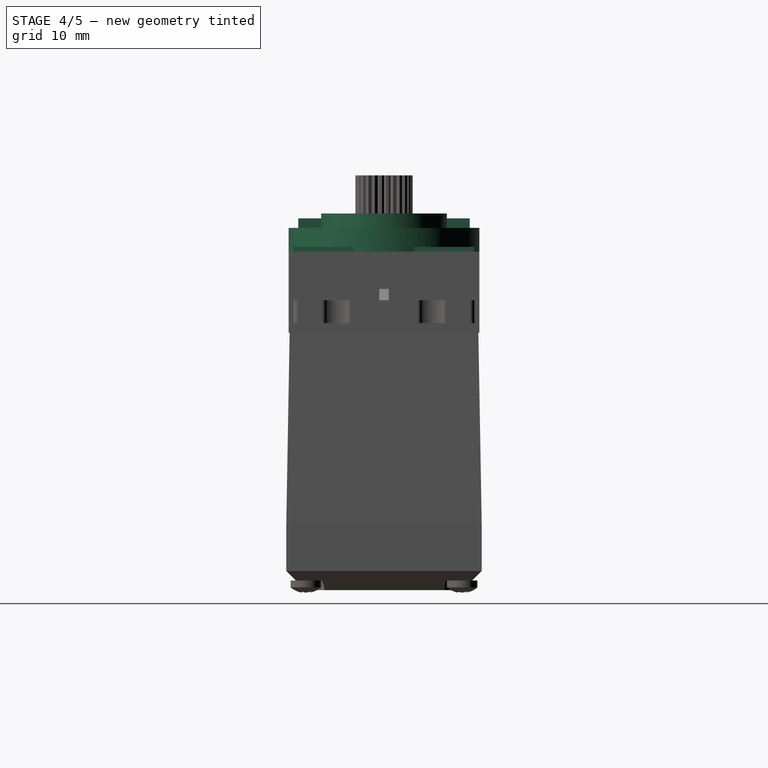
[diagram: stage 4 of 5 — right view after this stage's code; geometry added in this stage tinted green]
FEATURE [Sketcher::SketchObject] Sketch007
  ExternalGeometry = -> [Pocket]
  FullyConstrained = true
  MapMode = 5
  Placement = pos=(0,0,-27) rot=(0,0,1;0rad)
  Support = -> [DatumPlane001]
  sketch-geometry (4):
    g0: Circle CenterX=-28.3491 CenterY=-8.2491 CenterZ=0 NormalX=0 NormalY=0 NormalZ=1 AngleXU=0 Radius=0.8
    g1: Circle CenterX=-28.3491 CenterY=8.2491 CenterZ=0 NormalX=0 NormalY=0 NormalZ=1 AngleXU=0 Radius=0.8
    g2: Circle CenterX=8.3491 CenterY=8.2491 CenterZ=0 NormalX=0 NormalY=0 NormalZ=1 AngleXU=0 Radius=0.8
    g3: Circle CenterX=8.3491 CenterY=-8.2491 CenterZ=0 NormalX=0 NormalY=0 NormalZ=1 AngleXU=0 Radius=0.8
  constraints (8):
    c: Coincident(g0,g-3)
    c: Coincident(g1,g-5)
    c: Coincident(g2,g-6)
    c: Coincident(g3,g-4)
    c: Equal(g0,g1)
    c: Equal(g1,g2)
    c: Equal(g2,g3)
    c: Diameter(g0) = 1.6
FEATURE [PartDesign::Pocket] Pocket001  label="trous_vis"
  BaseFeature = -> Pocket
  Direction = (0,0,-1)
  Length = 7
  Length2 = 5
  Profile = -> Sketch007
  ReferenceAxis = -> Sketch007 [N_Axis]
  Reversed = true
  Type = 0
FEATURE [Sketcher::SketchObject] Sketch008
  ExternalGeometry = -> [Pad004,DatumPlane]
  FullyConstrained = true
  MapMode = 5
  Placement = pos=(0,0,7.5) rot=(0,0,1;0rad)
  Support = -> [Pad004]
  sketch-geometry (5):
    g0: LineSegment StartX=-29.5 StartY=9.5 StartZ=0 EndX=-29.5 EndY=-9.5 EndZ=0
    g1: LineSegment StartX=-29.5 StartY=-9.5 StartZ=0 EndX=9.5 EndY=-9.5 EndZ=0
    g2: LineSegment StartX=9.5 StartY=-9.5 StartZ=0 EndX=9.5 EndY=9.5 EndZ=0
    g3: LineSegment StartX=9.5 StartY=9.5 StartZ=0 EndX=-29.5 EndY=9.5 EndZ=0
    g4: GeomPoint X=-10 Y=0 Z=0
  constraints (15):
    c: DistanceX(g-3,g-3) = 40
    c: DistanceY(g-4,g-3) = 20
    c: Coincident(g0,g1)
    c: Coincident(g1,g2)
    c: Coincident(g2,g3)
    c: Coincident(g3,g0)
    c: Horizontal(g1)
    c: Horizontal(g3)
    c: Vertical(g0)
    c: Vertical(g2)
    c: Symmetric(g1,g0,g4)
    c: PointOnObject(g4,g-1)
    c: DistanceX(g3,g3) = 39
    c: PointOnObject(g4,g-5)
    c: DistanceY(g0,g0) = 19
FEATURE [PartDesign::Pad] Pad005
  BaseFeature = -> Pocket001
  Direction = (0,0,1)
  Length = 0.5
  Length2 = 10
  Profile = -> Sketch008
  ReferenceAxis = -> Sketch008 [N_Axis]
  Type = 0
FEATURE [Sketcher::SketchObject] Sketch009
  ExternalGeometry = -> [Pad005]
  FullyConstrained = true
  MapMode = 5
  Placement = pos=(0,0,8) rot=(0,0,1;0rad)
  Support = -> [Pad005]
  sketch-geometry (7):
    g0: ArcOfCircle CenterX=0 CenterY=0 CenterZ=0 NormalX=0 NormalY=0 NormalZ=1 AngleXU=0 Radius=10 StartAngle=4.26136 EndAngle=8.30501
    g1: LineSegment StartX=-4.3589 StartY=9 StartZ=0 EndX=-24 EndY=9 EndZ=0
    g2: LineSegment StartX=-24 StartY=9 StartZ=0 EndX=-24 EndY=4.8734 EndZ=0
    g3: ArcOfCircle CenterX=-20.5 CenterY=0 CenterZ=0 NormalX=0 NormalY=0 NormalZ=1 AngleXU=0 Radius=6 StartAngle=2.19362 EndAngle=4.08956
    g4: LineSegment StartX=-24 StartY=-4.8734 StartZ=0 EndX=-24 EndY=-9 EndZ=0
    g5: LineSegment StartX=-24 StartY=-9 StartZ=0 EndX=-4.3589 EndY=-9 EndZ=0
    g6: GeomPoint X=-26.5 Y=0 Z=0
  constraints (20):
    c: Coincident(g0,g-1)
    c: Horizontal(g1)
    c: Coincident(g2,g1)
    c: Vertical(g2)
    c: PointOnObject(g3,g-1)
    c: Coincident(g3,g2)
    c: Coincident(g4,g3)
    c: Vertical(g4)
    c: Horizontal(g5)
    c: Coincident(g0,g5)
    c: Diameter(g0) = 20
    c: Coincident(g0,g1)
    c: Diameter(g3) = 12
    c: PointOnObject(g6,g3)
    c: PointOnObject(g6,g-1)
    c: DistanceX(g-3,g6) = 3
    c: DistanceX(g-3,g1) = 5.5
    c: DistanceY(g1,g-3) = 0.5
    c: Symmetric(g4,g1,g-1)
    c: Coincident(g4,g5)
FEATURE [PartDesign::Pad] Pad006
  BaseFeature = -> Pad005
  Direction = (0,0,1)
  Length = 2
  Length2 = 0.5
  Profile = -> Sketch009
  ReferenceAxis = -> Sketch009 [N_Axis]
  Refine = true
  Type = 4
FEATURE [Sketcher::SketchObject] Sketch010
  AttachmentOffset = pos=(0,0,10) rot=(0,0,1;0rad)
  ExternalGeometry = -> [Pad006]
  FullyConstrained = true
  MapMode = 5
  Placement = pos=(0,0,10) rot=(0,0,1;0rad)
  Support = -> [XY_Plane001]
  sketch-geometry (4):
    g0: LineSegment StartX=-24 StartY=9 StartZ=0 EndX=-11 EndY=9 EndZ=0
    g1: LineSegment StartX=-11 StartY=9 StartZ=0 EndX=-11 EndY=-9 EndZ=0
    g2: LineSegment StartX=-11 StartY=-9 StartZ=0 EndX=-24 EndY=-9 EndZ=0
    g3: LineSegment StartX=-24 StartY=-9 StartZ=0 EndX=-24 EndY=9 EndZ=0
  constraints (11):
    c: Coincident(g0,g1)
    c: Coincident(g1,g2)
    c: Coincident(g2,g3)
    c: Coincident(g3,g0)
    c: Horizontal(g0)
    c: Horizontal(g2)
    c: Vertical(g1)
    c: Vertical(g3)
    c: Coincident(g0,g-3)
    c: PointOnObject(g1,g-4)
    c: DistanceX(g0,g0) = 13
FEATURE [PartDesign::Pad] Pad007
  BaseFeature = -> Pad006
  Direction = (0,0,1)
  Length = 1
  Length2 = 10
  Profile = -> Sketch010
  ReferenceAxis = -> Sketch010 [N_Axis]
  Refine = true
  Type = 0
FEATURE [Sketcher::SketchObject] Sketch011
  AttachmentOffset = pos=(0,0,11) rot=(0,0,1;0rad)
  ExternalGeometry = -> [Pad007]
  FullyConstrained = true
  MapMode = 5
  Placement = pos=(0,0,11) rot=(0,0,1;0rad)
  Support = -> [XY_Plane001]
  sketch-geometry (4):
    g0: LineSegment StartX=-23 StartY=8 StartZ=0 EndX=-12 EndY=8 EndZ=0
    g1: LineSegment StartX=-12 StartY=8 StartZ=0 EndX=-12 EndY=-8 EndZ=0
    g2: LineSegment StartX=-12 StartY=-8 StartZ=0 EndX=-23 EndY=-8 EndZ=0
    g3: LineSegment StartX=-23 StartY=-8 StartZ=0 EndX=-23 EndY=8 EndZ=0
  constraints (13):
    c: Coincident(g0,g1)
    c: Coincident(g1,g2)
    c: Coincident(g2,g3)
    c: Coincident(g3,g0)
    c: Horizontal(g0)
    c: Horizontal(g2)
    c: Vertical(g1)
    c: Vertical(g3)
    c: DistanceX(g-3,g-3) = 13
    c: DistanceX(g-3,g0) = 1
    c: DistanceY(g0,g-3) = 1
    c: DistanceY(g-4,g1) = 1
    c: DistanceX(g1,g-4) = 1
FEATURE [PartDesign::Pocket] Pocket002
  BaseFeature = -> Pad007
  Direction = (0,0,-1)
  Length = 0.3
  Length2 = 5
  Profile = -> Sketch011
  ReferenceAxis = -> Sketch011 [N_Axis]
  Type = 0
FEATURE [Sketcher::SketchObject] Sketch012
  AttachmentOffset = pos=(0,0,10) rot=(0,0,1;0rad)
  ExternalGeometry = -> [Pocket002]
  FullyConstrained = true
  MapMode = 5
  Placement = pos=(0,0,10) rot=(0,0,1;0rad)
  Support = -> [XY_Plane001]
  sketch-geometry (2):
    g0: ArcOfCircle CenterX=-10.6 CenterY=0 CenterZ=0 NormalX=0 NormalY=0 NormalZ=1 AngleXU=0 Radius=2 StartAngle=4.51103 EndAngle=8.05534
    g1: LineSegment StartX=-11 StartY=1.95959 StartZ=0 EndX=-11 EndY=-1.95959 EndZ=0
  constraints (7):
    c: PointOnObject(g0,g-1)
    c: Coincident(g1,g0)
    c: Coincident(g0,g1)
    c: Diameter(g0) = 4
    c: DistanceX(g0,g0) = 0.4
    c: PointOnObject(g0,g-3)
    c: Vertical(g1)
FEATURE [PartDesign::Pad] Pad008
  BaseFeature = -> Pocket002
  Direction = (0,0,1)
  Length = 0.8
  Length2 = 10
  Profile = -> Sketch012
  ReferenceAxis = -> Sketch012 [N_Axis]
  Type = 0
FEATURE [Sketcher::SketchObject] Sketch013
  AttachmentOffset = pos=(0,0,10) rot=(0,0,1;0rad)
  FullyConstrained = true
  MapMode = 5
  Placement = pos=(0,0,10) rot=(0,0,1;0rad)
  Support = -> [XY_Plane001]
  sketch-geometry (1):
    g0: Circle CenterX=0 CenterY=0 CenterZ=0 NormalX=0 NormalY=0 NormalZ=1 AngleXU=0 Radius=6.6
  constraints (2):
    c: Coincident(g0,g-1)
    c: Diameter(g0) = 13.2
FEATURE [PartDesign::Pad] Pad009
  BaseFeature = -> Pad008
  Direction = (0,0,1)
  Length = 1.5
  Length2 = 10
  Profile = -> Sketch013
  ReferenceAxis = -> Sketch013 [N_Axis]
  Type = 0
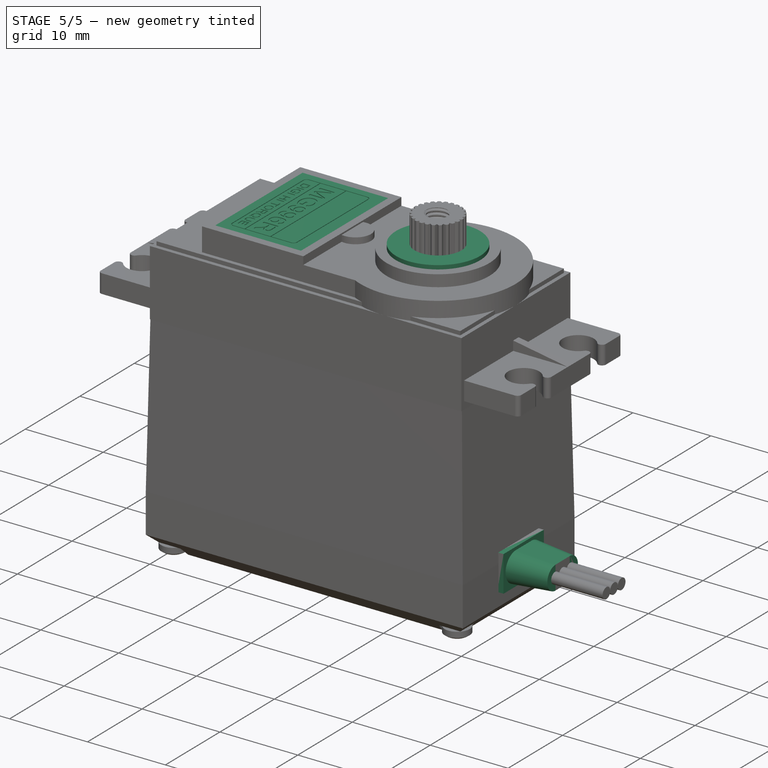
[diagram: stage 5 of 5 — iso view after this stage's code; geometry added in this stage tinted green]
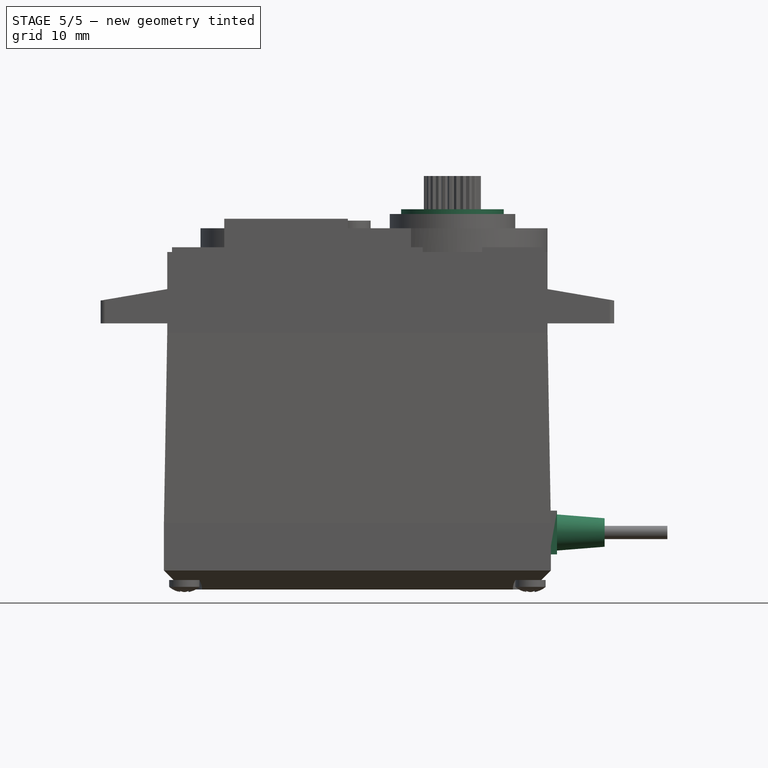
[diagram: stage 5 of 5 — front view after this stage's code; geometry added in this stage tinted green]
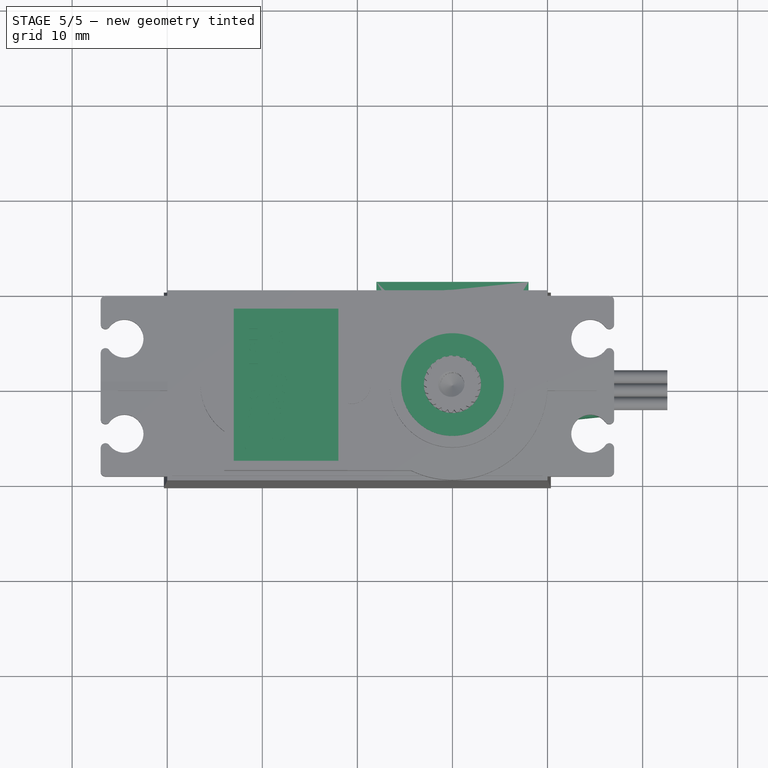
[diagram: stage 5 of 5 — top view after this stage's code; geometry added in this stage tinted green]
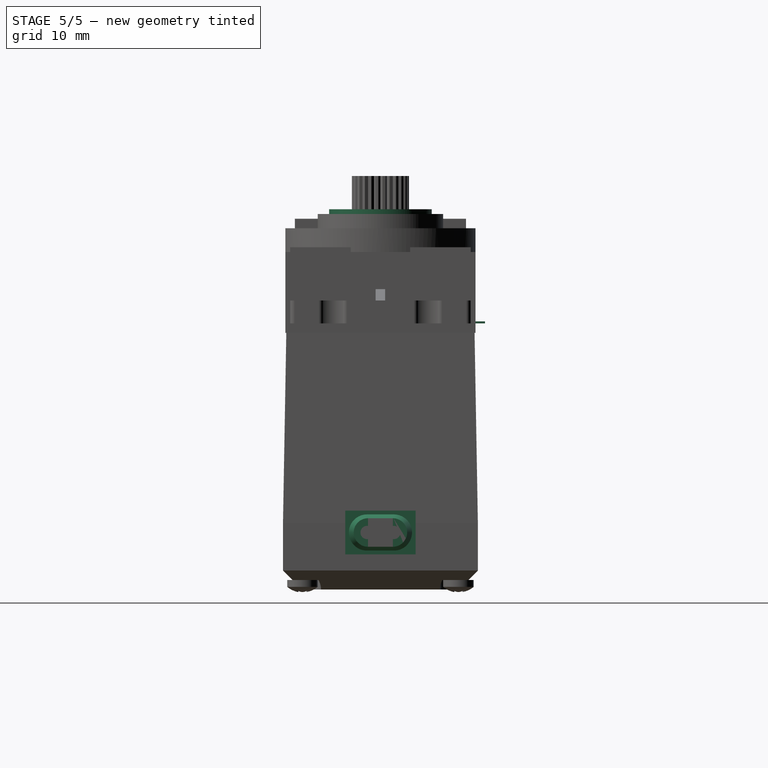
[diagram: stage 5 of 5 — right view after this stage's code; geometry added in this stage tinted green]
FEATURE [Sketcher::SketchObject] Sketch014
  AttachmentOffset = pos=(0,0,11.5) rot=(0,0,1;0rad)
  FullyConstrained = true
  MapMode = 5
  Placement = pos=(0,0,11.5) rot=(0,0,1;0rad)
  Support = -> [XY_Plane001]
  sketch-geometry (1):
    g0: Circle CenterX=0 CenterY=0 CenterZ=0 NormalX=0 NormalY=0 NormalZ=1 AngleXU=0 Radius=5.4
  constraints (2):
    c: Coincident(g0,g-1)
    c: Diameter(g0) = 10.8
FEATURE [PartDesign::Pad] Pad010
  BaseFeature = -> Pad009
  Direction = (0,0,1)
  Length = 0.5
  Length2 = 10
  Profile = -> Sketch014
  ReferenceAxis = -> Sketch014 [N_Axis]
  Type = 0
FEATURE [Sketcher::SketchObject] Sketch015
  FullyConstrained = true
  MapMode = 5
  Support = -> [XY_Plane001]
  sketch-geometry (1):
    g0: Circle CenterX=0 CenterY=0 CenterZ=0 NormalX=0 NormalY=0 NormalZ=1 AngleXU=0 Radius=3
  constraints (2):
    c: Coincident(g0,g-1)
    c: Diameter(g0) = 6
FEATURE [PartDesign::Pocket] Pocket003
  BaseFeature = -> Pad010
  Direction = (0,0,-1)
  Length = 20
  Length2 = 5
  Profile = -> Sketch015
  ReferenceAxis = -> Sketch015 [N_Axis]
  Reversed = true
  Type = 0
FEATURE [PartDesign::Body] Body  label="corps"
  Group = -> [Sketch,Pad,Sketch001,Pad001,DatumPlane,Sketch002,Pad002,Mirrored,Sketch004,Pad003,Sketch005,Pad004,Chamfer,DatumPlane001,Sketch006,Pocket,Sketch007,Pocket001,Sketch008,Pad005,Sketch009,Pad006,Sketch010,Pad007,Sketch011,Pocket002,Sketch012,Pad008,Sketch013,Pad009,Sketch014,Pad010,Sketch015,Pocket003]
  Origin = -> Origin
  Tip = -> Pocket003
FEATURE [Sketcher::SketchObject] Sketch016
  FullyConstrained = true
  MapMode = 5
  Support = -> [XY_Plane001]
  sketch-geometry (4):
    g0: LineSegment StartX=-8 StartY=11 StartZ=0 EndX=8 EndY=11 EndZ=0
    g1: LineSegment StartX=8 StartY=11 StartZ=0 EndX=8 EndY=0 EndZ=0
    g2: LineSegment StartX=8 StartY=0 StartZ=0 EndX=-8 EndY=-1e-16 EndZ=0
    g3: LineSegment StartX=-8 StartY=-1e-16 StartZ=0 EndX=-8 EndY=11 EndZ=0
  constraints (11):
    c: Coincident(g0,g1)
    c: Coincident(g1,g2)
    c: Coincident(g2,g3)
    c: Coincident(g3,g0)
    c: Horizontal(g0)
    c: Vertical(g1)
    c: Vertical(g3)
    c: PointOnObject(g1,g-1)
    c: Symmetric(g2,g1,g-2)
    c: DistanceX(g0,g0) = 16
    c: DistanceY(g3,g3) = 11
FEATURE [PartDesign::Pad] Pad011
  Direction = (0,0,1)
  Length = 0.2
  Length2 = 10
  Profile = -> Sketch016
  ReferenceAxis = -> Sketch016 [N_Axis]
  Type = 0
FEATURE [Sketcher::SketchObject] Sketch017
  ExternalGeometry = -> [Pad011]
  FullyConstrained = true
  MapMode = 5
  Placement = pos=(0,0,0.2) rot=(0,0,1;0rad)
  Support = -> [Pad011]
  sketch-geometry (24):
    g0: LineSegment StartX=-6.5 StartY=9.5 StartZ=0 EndX=6.5 EndY=9.5 EndZ=0
    g1: LineSegment StartX=7 StartY=9 StartZ=0 EndX=7 EndY=1.6 EndZ=0
    g2: LineSegment StartX=6.5 StartY=1.1 StartZ=0 EndX=-6.5 EndY=1.1 EndZ=0
    g3: LineSegment StartX=-7 StartY=1.6 StartZ=0 EndX=-7 EndY=9 EndZ=0
    g4: LineSegment StartX=-6.5 StartY=9.4 StartZ=0 EndX=6.5 EndY=9.4 EndZ=0
    g5: LineSegment StartX=6.9 StartY=9 StartZ=0 EndX=6.9 EndY=6.4 EndZ=0
    g6: LineSegment StartX=6.9 StartY=6.4 StartZ=0 EndX=-6.9 EndY=6.4 EndZ=0
    g7: LineSegment StartX=-6.9 StartY=6.4 StartZ=0 EndX=-6.9 EndY=9 EndZ=0
    g8: LineSegment StartX=-6.9 StartY=6.3 StartZ=0 EndX=6.9 EndY=6.3 EndZ=0
    g9: LineSegment StartX=6.9 StartY=6.3 StartZ=0 EndX=6.9 EndY=3.1 EndZ=0
    g10: LineSegment StartX=6.9 StartY=3.1 StartZ=0 EndX=-6.9 EndY=3.1 EndZ=0
    g11: LineSegment StartX=-6.9 StartY=3.1 StartZ=0 EndX=-6.9 EndY=6.3 EndZ=0
    g12: LineSegment StartX=-6.9 StartY=3 StartZ=0 EndX=6.9 EndY=3 EndZ=0
    g13: LineSegment StartX=6.9 StartY=3 StartZ=0 EndX=6.9 EndY=1.6 EndZ=0
    g14: LineSegment StartX=6.5 StartY=1.2 StartZ=0 EndX=-6.5 EndY=1.2 EndZ=0
    g15: LineSegment StartX=-6.9 StartY=1.6 StartZ=0 EndX=-6.9 EndY=3 EndZ=0
    g16: ArcOfCircle CenterX=-6.5 CenterY=9 CenterZ=0 NormalX=0 NormalY=0 NormalZ=1 AngleXU=0 Radius=0.4 StartAngle=1.5708 EndAngle=3.14159
    g17: ArcOfCircle CenterX=-6.5 CenterY=9 CenterZ=0 NormalX=0 NormalY=0 NormalZ=1 AngleXU=0 Radius=0.5 StartAngle=1.5708 EndAngle=3.14159
    g18: ArcOfCircle CenterX=6.5 CenterY=9 CenterZ=0 NormalX=0 NormalY=0 NormalZ=1 AngleXU=0 Radius=0.4 StartAngle=0 EndAngle=1.5708
    g19: ArcOfCircle CenterX=6.5 CenterY=9 CenterZ=0 NormalX=0 NormalY=0 NormalZ=1 AngleXU=0 Radius=0.5 StartAngle=-9e-16 EndAngle=1.5708
    g20: ArcOfCircle CenterX=-6.5 CenterY=1.6 CenterZ=0 NormalX=0 NormalY=0 NormalZ=1 AngleXU=0 Radius=0.5 StartAngle=3.14159 EndAngle=4.71239
    g21: ArcOfCircle CenterX=-6.5 CenterY=1.6 CenterZ=0 NormalX=0 NormalY=0 NormalZ=1 AngleXU=0 Radius=0.4 StartAngle=3.14159 EndAngle=4.71239
    g22: ArcOfCircle CenterX=6.5 CenterY=1.6 CenterZ=0 NormalX=0 NormalY=0 NormalZ=1 AngleXU=0 Radius=0.4 StartAngle=4.71239 EndAngle=6.28319
    g23: ArcOfCircle CenterX=6.5 CenterY=1.6 CenterZ=0 NormalX=0 NormalY=0 NormalZ=1 AngleXU=0 Radius=0.5 StartAngle=4.71239 EndAngle=6.28319
  constraints (60):
    c: Horizontal(g2)
    c: Vertical(g1)
    c: Vertical(g3)
    c: Coincident(g5,g6)
    c: Coincident(g6,g7)
    c: Horizontal(g6)
    c: Vertical(g5)
    c: Vertical(g7)
    c: Coincident(g8,g9)
    c: Coincident(g9,g10)
    c: Coincident(g10,g11)
    c: Coincident(g11,g8)
    c: Horizontal(g8)
    c: Horizontal(g10)
    c: Vertical(g9)
    c: Vertical(g11)
    c: Coincident(g12,g13)
    c: Coincident(g15,g12)
    c: Horizontal(g12)
    c: Horizontal(g14)
    c: Vertical(g13)
    c: Vertical(g15)
    c: Vertical(g6,g8)
    c: Vertical(g8,g12)
    c: Vertical(g5,g8)
    c: Vertical(g8,g12)
    c: Tangent(g4,g16) = 1.5708
    c: Tangent(g7,g16) = 1.5708
    c: Tangent(g0,g17) = 1.5708
    c: Tangent(g3,g17) = 1.5708
    c: Tangent(g4,g18) = 1.5708
    c: Tangent(g5,g18) = 1.5708
    c: Tangent(g0,g19) = 1.5708
    c: Tangent(g1,g19) = 1.5708
    c: Tangent(g2,g20) = 1.5708
    c: Tangent(g3,g20) = 1.5708
    c: Tangent(g14,g21) = 1.5708
    c: Tangent(g15,g21) = 1.5708
    c: Tangent(g13,g22) = 1.5708
    c: Tangent(g14,g22) = 1.5708
    c: Tangent(g1,g23) = 1.5708
    c: Tangent(g2,g23) = 1.5708
    c: Radius(g17) = 0.5
    c: Horizontal(g4)
    c: Horizontal(g0)
    c: Radius(g16) = 0.4
    c: Radius(g22) = 0.4
    c: Radius(g23) = 0.5
    c: Coincident(g18,g19)
    c: Coincident(g17,g16)
    c: Coincident(g21,g20)
    c: DistanceY(g12,g9) = 0.1
    c: DistanceY(g8,g5) = 0.1
    c: DistanceY(g14,g12) = 1.8
    c: DistanceY(g10,g8) = 3.2
    c: DistanceY(g6,g4) = 3
    c: DistanceY(g0,g-3) = 1.5
    c: DistanceX(g-3,g3) = 1
    c: Vertical(g20,g16)
    c: Symmetric(g16,g18,g-2)
FEATURE [PartDesign::Pocket] Pocket004
  BaseFeature = -> Pad011
  Direction = (0,0,-1)
  Length = 0.1
  Length2 = 5
  Profile = -> Sketch017
  ReferenceAxis = -> Sketch017 [N_Axis]
  Type = 0
FEATURE [Part::Part2DObjectPython] ShapeString  # Draft 2D object (typed FeaturePython)
  FontFile = <path>
  MakeFace = true
  Size = 2
  String = MG996R
  Tracking = 0
FEATURE [Sketcher::SketchObject] Sketch018
  FullyConstrained = false
  Placement = pos=(-5.5,3.7,0.2) rot=(0,0,1;0rad)
  sketch-geometry (159):
    g0: LineSegment StartX=0.190234 StartY=0 StartZ=0 EndX=0.190234 EndY=1.86972 EndZ=0
    g1: LineSegment StartX=0.429384 StartY=0 StartZ=0 EndX=0.190234 EndY=0 EndZ=0
    g2: LineSegment StartX=0.429384 StartY=1.58709 StartZ=0 EndX=0.429384 EndY=0 EndZ=0
    g3: LineSegment StartX=0.970106 StartY=0 StartZ=0 EndX=0.429384 EndY=1.58709 EndZ=0
    g4: LineSegment StartX=1.18616 StartY=0 StartZ=0 EndX=0.970106 EndY=0 EndZ=0
    g5: LineSegment StartX=1.73928 StartY=1.56535 StartZ=0 EndX=1.18616 EndY=0 EndZ=0
    g6: LineSegment StartX=1.73928 StartY=0 StartZ=0 EndX=1.73928 EndY=1.56535 EndZ=0
    g7: LineSegment StartX=1.97843 StartY=0 StartZ=0 EndX=1.73928 EndY=0 EndZ=0
    g8: LineSegment StartX=1.97843 StartY=1.86972 StartZ=0 EndX=1.97843 EndY=0 EndZ=0
    g9: LineSegment StartX=1.6552 StartY=1.86972 StartZ=0 EndX=1.97843 EndY=1.86972 EndZ=0
    g10: LineSegment StartX=1.19703 StartY=0.570361 StartZ=0 EndX=1.6552 EndY=1.86972 EndZ=0
    g11: BSplineCurve PolesCount=3 KnotsCount=2 Degree=2 IsPeriodic=0
    g12: BSplineCurve PolesCount=3 KnotsCount=2 Degree=2 IsPeriodic=0
    g13: LineSegment StartX=0.561189 StartY=1.86972 StartZ=0 EndX=1.00552 EndY=0.547431 EndZ=0
    g14: LineSegment StartX=0.190234 StartY=1.86972 StartZ=0 EndX=0.561189 EndY=1.86972 EndZ=0
    g15: LineSegment StartX=3.25028 StartY=0.728323 StartZ=0 EndX=3.25028 EndY=0.951168 EndZ=0
    g16: LineSegment StartX=3.7938 StartY=0.728323 StartZ=0 EndX=3.25028 EndY=0.728323 EndZ=0
    g17: LineSegment StartX=3.7938 StartY=0.382675 StartZ=0 EndX=3.7938 EndY=0.728323 EndZ=0
    g18: BSplineCurve PolesCount=3 KnotsCount=2 Degree=2 IsPeriodic=0
    g19: BSplineCurve PolesCount=3 KnotsCount=2 Degree=2 IsPeriodic=0
    g20: BSplineCurve PolesCount=3 KnotsCount=2 Degree=2 IsPeriodic=0
    g21: BSplineCurve PolesCount=3 KnotsCount=2 Degree=2 IsPeriodic=0
    g22: BSplineCurve PolesCount=3 KnotsCount=2 Degree=2 IsPeriodic=0
    g23: BSplineCurve PolesCount=3 KnotsCount=2 Degree=2 IsPeriodic=0
    g24: BSplineCurve PolesCount=3 KnotsCount=2 Degree=2 IsPeriodic=0
    g25: BSplineCurve PolesCount=3 KnotsCount=2 Degree=2 IsPeriodic=0
    g26: BSplineCurve PolesCount=3 KnotsCount=2 Degree=2 IsPeriodic=0
    g27: BSplineCurve PolesCount=3 KnotsCount=2 Degree=2 IsPeriodic=0
    g28: BSplineCurve PolesCount=3 KnotsCount=2 Degree=2 IsPeriodic=0
    g29: BSplineCurve PolesCount=3 KnotsCount=2 Degree=2 IsPeriodic=0
    g30: LineSegment StartX=4.01011 StartY=1.34573 StartZ=0 EndX=3.78497 EndY=1.28459 EndZ=0
    g31: BSplineCurve PolesCount=3 KnotsCount=2 Degree=2 IsPeriodic=0
    g32: BSplineCurve PolesCount=3 KnotsCount=2 Degree=2 IsPeriodic=0
    g33: BSplineCurve PolesCount=3 KnotsCount=2 Degree=2 IsPeriodic=0
    g34: BSplineCurve PolesCount=3 KnotsCount=2 Degree=2 IsPeriodic=0
    g35: BSplineCurve PolesCount=3 KnotsCount=2 Degree=2 IsPeriodic=0
    g36: BSplineCurve PolesCount=3 KnotsCount=2 Degree=2 IsPeriodic=0
    g37: BSplineCurve PolesCount=3 KnotsCount=2 Degree=2 IsPeriodic=0
    g38: BSplineCurve PolesCount=3 KnotsCount=2 Degree=2 IsPeriodic=0
    g39: BSplineCurve PolesCount=3 KnotsCount=2 Degree=2 IsPeriodic=0
    g40: BSplineCurve PolesCount=3 KnotsCount=2 Degree=2 IsPeriodic=0
    g41: BSplineCurve PolesCount=3 KnotsCount=2 Degree=2 IsPeriodic=0
    g42: LineSegment StartX=4.03839 StartY=0.951168 StartZ=0 EndX=4.03839 EndY=0.258854 EndZ=0
    g43: LineSegment StartX=3.25028 StartY=0.951168 StartZ=0 EndX=4.03839 EndY=0.951168 EndZ=0
    g44: LineSegment StartX=4.34276 StartY=0.429384 StartZ=0 EndX=4.56561 EndY=0.44569 EndZ=0
    g45: BSplineCurve PolesCount=3 KnotsCount=2 Degree=2 IsPeriodic=0
    g46: BSplineCurve PolesCount=3 KnotsCount=2 Degree=2 IsPeriodic=0
    g47: BSplineCurve PolesCount=3 KnotsCount=2 Degree=2 IsPeriodic=0
    g48: BSplineCurve PolesCount=3 KnotsCount=2 Degree=2 IsPeriodic=0
    g49: BSplineCurve PolesCount=3 KnotsCount=2 Degree=2 IsPeriodic=0
    g50: BSplineCurve PolesCount=3 KnotsCount=2 Degree=2 IsPeriodic=0
    g51: BSplineCurve PolesCount=3 KnotsCount=2 Degree=2 IsPeriodic=0
    g52: BSplineCurve PolesCount=3 KnotsCount=2 Degree=2 IsPeriodic=0
    g53: BSplineCurve PolesCount=3 KnotsCount=2 Degree=2 IsPeriodic=0
    g54: BSplineCurve PolesCount=3 KnotsCount=2 Degree=2 IsPeriodic=0
    g55: BSplineCurve PolesCount=3 KnotsCount=2 Degree=2 IsPeriodic=0
    g56: BSplineCurve PolesCount=3 KnotsCount=2 Degree=2 IsPeriodic=0
    g57: BSplineCurve PolesCount=3 KnotsCount=2 Degree=2 IsPeriodic=0
    g58: BSplineCurve PolesCount=3 KnotsCount=2 Degree=2 IsPeriodic=0
    g59: BSplineCurve PolesCount=3 KnotsCount=2 Degree=2 IsPeriodic=0
    g60: BSplineCurve PolesCount=3 KnotsCount=2 Degree=2 IsPeriodic=0
    g61: BSplineCurve PolesCount=3 KnotsCount=2 Degree=2 IsPeriodic=0
    g62: BSplineCurve PolesCount=3 KnotsCount=2 Degree=2 IsPeriodic=0
    g63: BSplineCurve PolesCount=3 KnotsCount=2 Degree=2 IsPeriodic=0
    g64: BSplineCurve PolesCount=3 KnotsCount=2 Degree=2 IsPeriodic=0
    g65: BSplineCurve PolesCount=3 KnotsCount=2 Degree=2 IsPeriodic=0
    g66: BSplineCurve PolesCount=3 KnotsCount=2 Degree=2 IsPeriodic=0
    g67: BSplineCurve PolesCount=3 KnotsCount=2 Degree=2 IsPeriodic=0
    g68: BSplineCurve PolesCount=3 KnotsCount=2 Degree=2 IsPeriodic=0
    g69: BSplineCurve PolesCount=3 KnotsCount=2 Degree=2 IsPeriodic=0
    g70: BSplineCurve PolesCount=3 KnotsCount=2 Degree=2 IsPeriodic=0
    g71: BSplineCurve PolesCount=3 KnotsCount=2 Degree=2 IsPeriodic=0
    g72: BSplineCurve PolesCount=3 KnotsCount=2 Degree=2 IsPeriodic=0
    g73: BSplineCurve PolesCount=3 KnotsCount=2 Degree=2 IsPeriodic=0
    g74: LineSegment StartX=5.79397 StartY=0.429384 StartZ=0 EndX=6.01682 EndY=0.44569 EndZ=0
    g75: BSplineCurve PolesCount=3 KnotsCount=2 Degree=2 IsPeriodic=0
    g76: BSplineCurve PolesCount=3 KnotsCount=2 Degree=2 IsPeriodic=0
    g77: BSplineCurve PolesCount=3 KnotsCount=2 Degree=2 IsPeriodic=0
    g78: BSplineCurve PolesCount=3 KnotsCount=2 Degree=2 IsPeriodic=0
    g79: BSplineCurve PolesCount=3 KnotsCount=2 Degree=2 IsPeriodic=0
    g80: BSplineCurve PolesCount=3 KnotsCount=2 Degree=2 IsPeriodic=0
    g81: BSplineCurve PolesCount=3 KnotsCount=2 Degree=2 IsPeriodic=0
    g82: BSplineCurve PolesCount=3 KnotsCount=2 Degree=2 IsPeriodic=0
    g83: BSplineCurve PolesCount=3 KnotsCount=2 Degree=2 IsPeriodic=0
    g84: BSplineCurve PolesCount=3 KnotsCount=2 Degree=2 IsPeriodic=0
    g85: BSplineCurve PolesCount=3 KnotsCount=2 Degree=2 IsPeriodic=0
    g86: BSplineCurve PolesCount=3 KnotsCount=2 Degree=2 IsPeriodic=0
    g87: BSplineCurve PolesCount=3 KnotsCount=2 Degree=2 IsPeriodic=0
    g88: BSplineCurve PolesCount=3 KnotsCount=2 Degree=2 IsPeriodic=0
    g89: BSplineCurve PolesCount=3 KnotsCount=2 Degree=2 IsPeriodic=0
    g90: BSplineCurve PolesCount=3 KnotsCount=2 Degree=2 IsPeriodic=0
    g91: BSplineCurve PolesCount=3 KnotsCount=2 Degree=2 IsPeriodic=0
    g92: BSplineCurve PolesCount=3 KnotsCount=2 Degree=2 IsPeriodic=0
    g93: BSplineCurve PolesCount=3 KnotsCount=2 Degree=2 IsPeriodic=0
    g94: BSplineCurve PolesCount=3 KnotsCount=2 Degree=2 IsPeriodic=0
    g95: BSplineCurve PolesCount=3 KnotsCount=2 Degree=2 IsPeriodic=0
    g96: BSplineCurve PolesCount=3 KnotsCount=2 Degree=2 IsPeriodic=0
    g97: BSplineCurve PolesCount=3 KnotsCount=2 Degree=2 IsPeriodic=0
    g98: BSplineCurve PolesCount=3 KnotsCount=2 Degree=2 IsPeriodic=0
    g99: BSplineCurve PolesCount=3 KnotsCount=2 Degree=2 IsPeriodic=0
    g100: BSplineCurve PolesCount=3 KnotsCount=2 Degree=2 IsPeriodic=0
    g101: BSplineCurve PolesCount=3 KnotsCount=2 Degree=2 IsPeriodic=0
    g102: BSplineCurve PolesCount=3 KnotsCount=2 Degree=2 IsPeriodic=0
    g103: BSplineCurve PolesCount=3 KnotsCount=2 Degree=2 IsPeriodic=0
    g104: LineSegment StartX=8.40289 StartY=1.41316 StartZ=0 EndX=8.17461 EndY=1.39686 EndZ=0
    g105: BSplineCurve PolesCount=3 KnotsCount=2 Degree=2 IsPeriodic=0
    g106: BSplineCurve PolesCount=3 KnotsCount=2 Degree=2 IsPeriodic=0
    g107: BSplineCurve PolesCount=3 KnotsCount=2 Degree=2 IsPeriodic=0
    g108: BSplineCurve PolesCount=3 KnotsCount=2 Degree=2 IsPeriodic=0
    g109: BSplineCurve PolesCount=3 KnotsCount=2 Degree=2 IsPeriodic=0
    g110: BSplineCurve PolesCount=3 KnotsCount=2 Degree=2 IsPeriodic=0
    g111: BSplineCurve PolesCount=3 KnotsCount=2 Degree=2 IsPeriodic=0
    g112: BSplineCurve PolesCount=3 KnotsCount=2 Degree=2 IsPeriodic=0
    g113: BSplineCurve PolesCount=3 KnotsCount=2 Degree=2 IsPeriodic=0
    g114: BSplineCurve PolesCount=3 KnotsCount=2 Degree=2 IsPeriodic=0
    g115: BSplineCurve PolesCount=3 KnotsCount=2 Degree=2 IsPeriodic=0
    g116: BSplineCurve PolesCount=3 KnotsCount=2 Degree=2 IsPeriodic=0
    g117: BSplineCurve PolesCount=3 KnotsCount=2 Degree=2 IsPeriodic=0
    g118: BSplineCurve PolesCount=3 KnotsCount=2 Degree=2 IsPeriodic=0
    g119: BSplineCurve PolesCount=3 KnotsCount=2 Degree=2 IsPeriodic=0
    g120: BSplineCurve PolesCount=3 KnotsCount=2 Degree=2 IsPeriodic=0
    g121: BSplineCurve PolesCount=3 KnotsCount=2 Degree=2 IsPeriodic=0
    g122: BSplineCurve PolesCount=3 KnotsCount=2 Degree=2 IsPeriodic=0
    g123: BSplineCurve PolesCount=3 KnotsCount=2 Degree=2 IsPeriodic=0
    g124: BSplineCurve PolesCount=3 KnotsCount=2 Degree=2 IsPeriodic=0
    g125: BSplineCurve PolesCount=3 KnotsCount=2 Degree=2 IsPeriodic=0
    g126: BSplineCurve PolesCount=3 KnotsCount=2 Degree=2 IsPeriodic=0
    g127: BSplineCurve PolesCount=3 KnotsCount=2 Degree=2 IsPeriodic=0
    g128: BSplineCurve PolesCount=3 KnotsCount=2 Degree=2 IsPeriodic=0
    g129: BSplineCurve PolesCount=3 KnotsCount=2 Degree=2 IsPeriodic=0
    g130: BSplineCurve PolesCount=3 KnotsCount=2 Degree=2 IsPeriodic=0
    g131: BSplineCurve PolesCount=3 KnotsCount=2 Degree=2 IsPeriodic=0
    g132: LineSegment StartX=8.76705 StartY=0 StartZ=0 EndX=8.76705 EndY=1.86972 EndZ=0
    g133: LineSegment StartX=9.01163 StartY=0 StartZ=0 EndX=8.76705 EndY=0 EndZ=0
    g134: LineSegment StartX=9.01163 StartY=0.831592 StartZ=0 EndX=9.01163 EndY=0 EndZ=0
    g135: LineSegment StartX=9.298 StartY=0.831592 StartZ=0 EndX=9.01163 EndY=0.831592 EndZ=0
    g136: BSplineCurve PolesCount=3 KnotsCount=2 Degree=2 IsPeriodic=0
    g137: BSplineCurve PolesCount=3 KnotsCount=2 Degree=2 IsPeriodic=0
    g138: BSplineCurve PolesCount=3 KnotsCount=2 Degree=2 IsPeriodic=0
    g139: BSplineCurve PolesCount=3 KnotsCount=2 Degree=2 IsPeriodic=0
    g140: LineSegment StartX=10.0985 StartY=0 StartZ=0 EndX=9.85163 EndY=0.390234 EndZ=0
    g141: LineSegment StartX=10.4068 StartY=0 StartZ=0 EndX=10.0985 EndY=0 EndZ=0
    g142: LineSegment StartX=10.0838 StartY=0.510488 StartZ=0 EndX=10.4068 EndY=0 EndZ=0
    g143: BSplineCurve PolesCount=3 KnotsCount=2 Degree=2 IsPeriodic=0
    g144: BSplineCurve PolesCount=3 KnotsCount=2 Degree=2 IsPeriodic=0
    g145: BSplineCurve PolesCount=3 KnotsCount=2 Degree=2 IsPeriodic=0
    g146: BSplineCurve PolesCount=3 KnotsCount=2 Degree=2 IsPeriodic=0
    g147: BSplineCurve PolesCount=3 KnotsCount=2 Degree=2 IsPeriodic=0
    g148: BSplineCurve PolesCount=3 KnotsCount=2 Degree=2 IsPeriodic=0
    g149: BSplineCurve PolesCount=3 KnotsCount=2 Degree=2 IsPeriodic=0
    g150: LineSegment StartX=8.76705 StartY=1.86972 StartZ=0 EndX=9.59193 EndY=1.86972 EndZ=0
    g151: LineSegment StartX=9.01163 StartY=1.05444 StartZ=0 EndX=9.54234 EndY=1.05444 EndZ=0
    g152: LineSegment StartX=9.01163 StartY=1.66318 StartZ=0 EndX=9.01163 EndY=1.05444 EndZ=0
    g153: LineSegment StartX=9.60212 StartY=1.66318 StartZ=0 EndX=9.01163 EndY=1.66318 EndZ=0
    g154: BSplineCurve PolesCount=3 KnotsCount=2 Degree=2 IsPeriodic=0
    g155: BSplineCurve PolesCount=3 KnotsCount=2 Degree=2 IsPeriodic=0
    g156: BSplineCurve PolesCount=3 KnotsCount=2 Degree=2 IsPeriodic=0
    g157: BSplineCurve PolesCount=3 KnotsCount=2 Degree=2 IsPeriodic=0
    g158: BSplineCurve PolesCount=3 KnotsCount=2 Degree=2 IsPeriodic=0
  constraints (182):
    c: Vertical(g0)
    c: Coincident(g0,g1)
    c: Horizontal(g1)
    c: Coincident(g1,g2)
    c: Vertical(g2)
    c: Coincident(g2,g3)
    c: Coincident(g3,g4)
    c: Horizontal(g4)
    c: Coincident(g4,g5)
    c: Coincident(g5,g6)
    c: Vertical(g6)
    c: Coincident(g6,g7)
    c: Horizontal(g7)
    c: Coincident(g7,g8)
    c: Vertical(g8)
    c: Coincident(g8,g9)
    c: Horizontal(g9)
    c: Coincident(g9,g10)
    c: Coincident(g10,g11)
    c: Coincident(g11,g12)
    c: Coincident(g12,g13)
    c: Coincident(g13,g14)
    c: Horizontal(g14)
    c: Coincident(g14,g0)
    c: Vertical(g15)
    c: Coincident(g15,g16)
    c: Horizontal(g16)
    c: Coincident(g16,g17)
    c: Vertical(g17)
    c: Coincident(g17,g18)
    c: Coincident(g18,g19)
    c: Coincident(g19,g20)
    c: Coincident(g20,g21)
    c: Coincident(g21,g22)
    c: Coincident(g22,g23)
    c: Coincident(g23,g24)
    c: Coincident(g24,g25)
    c: Coincident(g25,g26)
    c: Coincident(g26,g27)
    c: Coincident(g27,g28)
    c: Coincident(g28,g29)
    c: Coincident(g29,g30)
    c: Coincident(g30,g31)
    c: Coincident(g31,g32)
    c: Coincident(g32,g33)
    c: Coincident(g33,g34)
    c: Coincident(g34,g35)
    c: Coincident(g35,g36)
    c: Coincident(g36,g37)
    c: Coincident(g37,g38)
    c: Coincident(g38,g39)
    c: Coincident(g39,g40)
    c: Coincident(g40,g41)
    c: Coincident(g41,g42)
    c: Vertical(g42)
    c: Coincident(g42,g43)
    c: Horizontal(g43)
    c: Coincident(g43,g15)
    c: Coincident(g44,g45)
    c: Coincident(g45,g46)
    c: Coincident(g46,g47)
    c: Coincident(g47,g48)
    c: Coincident(g48,g49)
    c: Coincident(g49,g50)
    c: Coincident(g50,g51)
    c: Coincident(g51,g52)
    c: Coincident(g52,g53)
    c: Coincident(g53,g54)
    c: Coincident(g54,g55)
    c: Coincident(g55,g56)
    c: Coincident(g56,g57)
    c: Coincident(g57,g58)
    c: Coincident(g58,g59)
    c: Coincident(g59,g60)
    c: Coincident(g60,g61)
    c: Coincident(g61,g62)
    c: Coincident(g62,g63)
    c: Coincident(g63,g64)
    c: Coincident(g64,g65)
    c: Coincident(g65,g44)
    c: Coincident(g66,g67)
    c: Coincident(g67,g68)
    c: Coincident(g68,g69)
    c: Coincident(g69,g70)
    c: Coincident(g70,g71)
    c: Coincident(g71,g72)
    c: Coincident(g72,g73)
    c: Coincident(g73,g66)
    c: Coincident(g74,g75)
    c: Coincident(g75,g76)
    c: Coincident(g76,g77)
    c: Coincident(g77,g78)
    c: Coincident(g78,g79)
    c: Coincident(g79,g80)
    c: Coincident(g80,g81)
    c: Coincident(g81,g82)
    c: Coincident(g82,g83)
    c: Coincident(g83,g84)
    c: Coincident(g84,g85)
    c: Coincident(g85,g86)
    c: Coincident(g86,g87)
    c: Coincident(g87,g88)
    c: Coincident(g88,g89)
    c: Coincident(g89,g90)
    c: Coincident(g90,g91)
    c: Coincident(g91,g92)
    c: Coincident(g92,g93)
    c: Coincident(g93,g94)
    c: Coincident(g94,g95)
    c: Coincident(g95,g74)
    c: Coincident(g96,g97)
    c: Coincident(g97,g98)
    c: Coincident(g98,g99)
    c: Coincident(g99,g100)
    c: Coincident(g100,g101)
    c: Coincident(g101,g102)
    c: Coincident(g102,g103)
    c: Coincident(g103,g96)
    c: Coincident(g104,g105)
    c: Coincident(g105,g106)
    c: Coincident(g106,g107)
    c: Coincident(g107,g108)
    c: Coincident(g108,g109)
    c: Coincident(g109,g110)
    c: Coincident(g110,g111)
    c: Coincident(g111,g112)
    c: Coincident(g112,g113)
    c: Coincident(g113,g114)
    c: Coincident(g114,g115)
    c: Coincident(g115,g116)
    c: Coincident(g116,g117)
    c: Coincident(g117,g118)
    c: Coincident(g118,g119)
    c: Coincident(g119,g120)
    c: Coincident(g120,g121)
    c: Coincident(g121,g122)
    c: Coincident(g122,g104)
    c: Coincident(g123,g124)
    c: Coincident(g124,g125)
    c: Coincident(g125,g126)
    c: Coincident(g126,g127)
    c: Coincident(g127,g128)
    c: Coincident(g128,g129)
    c: Coincident(g129,g130)
    c: Coincident(g130,g131)
    c: Coincident(g131,g123)
    c: Vertical(g132)
    c: Coincident(g132,g133)
    c: Horizontal(g133)
    c: Coincident(g133,g134)
    c: Vertical(g134)
    c: Coincident(g134,g135)
    c: Horizontal(g135)
    c: Coincident(g135,g136)
    c: Coincident(g136,g137)
    c: Coincident(g137,g138)
    c: Coincident(g138,g139)
    c: Coincident(g139,g140)
    c: Coincident(g140,g141)
    c: Horizontal(g141)
    c: Coincident(g141,g142)
    c: Coincident(g142,g143)
    c: Coincident(g143,g144)
    c: Coincident(g144,g145)
    c: Coincident(g145,g146)
    c: Coincident(g146,g147)
    c: Coincident(g147,g148)
    c: Coincident(g148,g149)
    c: Coincident(g149,g150)
    c: Horizontal(g150)
    c: Coincident(g150,g132)
    c: Horizontal(g151)
    c: Coincident(g151,g152)
    c: Vertical(g152)
    c: Coincident(g152,g153)
    c: Horizontal(g153)
    c: Coincident(g153,g154)
    c: Coincident(g154,g155)
    c: Coincident(g155,g156)
    c: Coincident(g156,g157)
    c: Coincident(g157,g158)
    c: Coincident(g158,g151)
FEATURE [Part::Part2DObjectPython] Clone2D  label="Sketch018 (2D)"  # Draft 2D object (typed FeaturePython)
  Fuse = false
  Objects = -> [Sketch018]
  Placement = pos=(-6.2,3.7,0.2) rot=(0,0,1;0rad)
  Scale = (1.2,1,1)
FEATURE [PartDesign::Pocket] Pocket005
  BaseFeature = -> Pocket004
  Direction = (0,0,-1)
  Length = 0.1
  Length2 = 5
  Profile = -> Clone2D
  ReferenceAxis = -> Clone2D [N_Axis]
  Type = 0
FEATURE [Part::Part2DObjectPython] ShapeString001  # Draft 2D object (typed FeaturePython)
  FontFile = <path>
  MakeFace = true
  Placement = pos=(-5,1.6,0.2) rot=(-0.048053,0.997391,-0.053874;0rad)
  Size = 1
  String = DIGI HI TORQUE
  Tracking = 0
FEATURE [Sketcher::SketchObject] Sketch019
  FullyConstrained = false
  Placement = pos=(0,0,0.2) rot=(0,0,1;0rad)
  sketch-geometry (186):
    g0: LineSegment StartX=-4.89945 StartY=1.6 StartZ=0 EndX=-4.89945 EndY=2.53486 EndZ=0
    g1: LineSegment StartX=-4.56259 StartY=1.6 StartZ=0 EndX=-4.89945 EndY=1.6 EndZ=0
    g2: BSplineCurve PolesCount=3 KnotsCount=2 Degree=2 IsPeriodic=0
    g3: BSplineCurve PolesCount=3 KnotsCount=2 Degree=2 IsPeriodic=0
    g4: BSplineCurve PolesCount=3 KnotsCount=2 Degree=2 IsPeriodic=0
    g5: BSplineCurve PolesCount=3 KnotsCount=2 Degree=2 IsPeriodic=0
    g6: BSplineCurve PolesCount=3 KnotsCount=2 Degree=2 IsPeriodic=0
    g7: BSplineCurve PolesCount=3 KnotsCount=2 Degree=2 IsPeriodic=0
    g8: BSplineCurve PolesCount=3 KnotsCount=2 Degree=2 IsPeriodic=0
    g9: BSplineCurve PolesCount=3 KnotsCount=2 Degree=2 IsPeriodic=0
    g10: BSplineCurve PolesCount=3 KnotsCount=2 Degree=2 IsPeriodic=0
    g11: LineSegment StartX=-4.89945 StartY=2.53486 StartZ=0 EndX=-4.57788 EndY=2.53486 EndZ=0
    g12: LineSegment StartX=-4.77715 StartY=1.71142 StartZ=0 EndX=-4.57749 EndY=1.71142 EndZ=0
    g13: LineSegment StartX=-4.77715 StartY=2.42344 StartZ=0 EndX=-4.77715 EndY=1.71142 EndZ=0
    g14: LineSegment StartX=-4.58068 StartY=2.42344 StartZ=0 EndX=-4.77715 EndY=2.42344 EndZ=0
    g15: BSplineCurve PolesCount=3 KnotsCount=2 Degree=2 IsPeriodic=0
    g16: BSplineCurve PolesCount=3 KnotsCount=2 Degree=2 IsPeriodic=0
    g17: BSplineCurve PolesCount=3 KnotsCount=2 Degree=2 IsPeriodic=0
    g18: BSplineCurve PolesCount=3 KnotsCount=2 Degree=2 IsPeriodic=0
    g19: BSplineCurve PolesCount=3 KnotsCount=2 Degree=2 IsPeriodic=0
    g20: BSplineCurve PolesCount=3 KnotsCount=2 Degree=2 IsPeriodic=0
    g21: BSplineCurve PolesCount=3 KnotsCount=2 Degree=2 IsPeriodic=0
    g22: LineSegment StartX=-3.93469 StartY=1.6 StartZ=0 EndX=-3.93469 EndY=2.53486 EndZ=0
    g23: LineSegment StartX=-3.8124 StartY=1.6 StartZ=0 EndX=-3.93469 EndY=1.6 EndZ=0
    g24: LineSegment StartX=-3.8124 StartY=2.53486 StartZ=0 EndX=-3.8124 EndY=1.6 EndZ=0
    g25: LineSegment StartX=-3.93469 StartY=2.53486 StartZ=0 EndX=-3.8124 EndY=2.53486 EndZ=0
    g26: LineSegment StartX=-3.15745 StartY=1.96416 StartZ=0 EndX=-3.15745 EndY=2.07558 EndZ=0
    g27: LineSegment StartX=-2.88569 StartY=1.96416 StartZ=0 EndX=-3.15745 EndY=1.96416 EndZ=0
    g28: LineSegment StartX=-2.88569 StartY=1.79134 StartZ=0 EndX=-2.88569 EndY=1.96416 EndZ=0
    g29: BSplineCurve PolesCount=3 KnotsCount=2 Degree=2 IsPeriodic=0
    g30: BSplineCurve PolesCount=3 KnotsCount=2 Degree=2 IsPeriodic=0
    g31: BSplineCurve PolesCount=3 KnotsCount=2 Degree=2 IsPeriodic=0
    g32: BSplineCurve PolesCount=3 KnotsCount=2 Degree=2 IsPeriodic=0
    g33: BSplineCurve PolesCount=3 KnotsCount=2 Degree=2 IsPeriodic=0
    g34: BSplineCurve PolesCount=3 KnotsCount=2 Degree=2 IsPeriodic=0
    g35: BSplineCurve PolesCount=3 KnotsCount=2 Degree=2 IsPeriodic=0
    g36: BSplineCurve PolesCount=3 KnotsCount=2 Degree=2 IsPeriodic=0
    g37: BSplineCurve PolesCount=3 KnotsCount=2 Degree=2 IsPeriodic=0
    g38: BSplineCurve PolesCount=3 KnotsCount=2 Degree=2 IsPeriodic=0
    g39: BSplineCurve PolesCount=3 KnotsCount=2 Degree=2 IsPeriodic=0
    g40: BSplineCurve PolesCount=3 KnotsCount=2 Degree=2 IsPeriodic=0
    g41: LineSegment StartX=-2.77754 StartY=2.27287 StartZ=0 EndX=-2.89011 EndY=2.24229 EndZ=0
    g42: BSplineCurve PolesCount=3 KnotsCount=2 Degree=2 IsPeriodic=0
    g43: BSplineCurve PolesCount=3 KnotsCount=2 Degree=2 IsPeriodic=0
    g44: BSplineCurve PolesCount=3 KnotsCount=2 Degree=2 IsPeriodic=0
    g45: BSplineCurve PolesCount=3 KnotsCount=2 Degree=2 IsPeriodic=0
    g46: BSplineCurve PolesCount=3 KnotsCount=2 Degree=2 IsPeriodic=0
    g47: BSplineCurve PolesCount=3 KnotsCount=2 Degree=2 IsPeriodic=0
    g48: BSplineCurve PolesCount=3 KnotsCount=2 Degree=2 IsPeriodic=0
    g49: BSplineCurve PolesCount=3 KnotsCount=2 Degree=2 IsPeriodic=0
    g50: BSplineCurve PolesCount=3 KnotsCount=2 Degree=2 IsPeriodic=0
    g51: BSplineCurve PolesCount=3 KnotsCount=2 Degree=2 IsPeriodic=0
    g52: BSplineCurve PolesCount=3 KnotsCount=2 Degree=2 IsPeriodic=0
    g53: LineSegment StartX=-2.7634 StartY=2.07558 StartZ=0 EndX=-2.7634 EndY=1.72943 EndZ=0
    g54: LineSegment StartX=-3.15745 StartY=2.07558 StartZ=0 EndX=-2.7634 EndY=2.07558 EndZ=0
    g55: LineSegment StartX=-2.55958 StartY=1.6 StartZ=0 EndX=-2.55958 EndY=2.53486 EndZ=0
    g56: LineSegment StartX=-2.43728 StartY=1.6 StartZ=0 EndX=-2.55958 EndY=1.6 EndZ=0
    g57: LineSegment StartX=-2.43728 StartY=2.53486 StartZ=0 EndX=-2.43728 EndY=1.6 EndZ=0
    g58: LineSegment StartX=-2.55958 StartY=2.53486 StartZ=0 EndX=-2.43728 EndY=2.53486 EndZ=0
    g59: LineSegment StartX=-1.85299 StartY=1.6 StartZ=0 EndX=-1.85299 EndY=2.53486 EndZ=0
    g60: LineSegment StartX=-1.7307 StartY=1.6 StartZ=0 EndX=-1.85299 EndY=1.6 EndZ=0
    g61: LineSegment StartX=-1.7307 StartY=2.04025 StartZ=0 EndX=-1.7307 EndY=1.6 EndZ=0
    g62: LineSegment StartX=-1.24425 StartY=2.04025 StartZ=0 EndX=-1.7307 EndY=2.04025 EndZ=0
    g63: LineSegment StartX=-1.24425 StartY=1.6 StartZ=0 EndX=-1.24425 EndY=2.04025 EndZ=0
    g64: LineSegment StartX=-1.12195 StartY=1.6 StartZ=0 EndX=-1.24425 EndY=1.6 EndZ=0
    g65: LineSegment StartX=-1.12195 StartY=2.53486 StartZ=0 EndX=-1.12195 EndY=1.6 EndZ=0
    g66: LineSegment StartX=-1.24425 StartY=2.53486 StartZ=0 EndX=-1.12195 EndY=2.53486 EndZ=0
    g67: LineSegment StartX=-1.24425 StartY=2.15168 StartZ=0 EndX=-1.24425 EndY=2.53486 EndZ=0
    g68: LineSegment StartX=-1.7307 StartY=2.15168 StartZ=0 EndX=-1.24425 EndY=2.15168 EndZ=0
    g69: LineSegment StartX=-1.7307 StartY=2.53486 StartZ=0 EndX=-1.7307 EndY=2.15168 EndZ=0
    g70: LineSegment StartX=-1.85299 StartY=2.53486 StartZ=0 EndX=-1.7307 EndY=2.53486 EndZ=0
    g71: LineSegment StartX=-0.893673 StartY=1.6 StartZ=0 EndX=-0.893673 EndY=2.53486 EndZ=0
    g72: LineSegment StartX=-0.77138 StartY=1.6 StartZ=0 EndX=-0.893673 EndY=1.6 EndZ=0
    g73: LineSegment StartX=-0.77138 StartY=2.53486 StartZ=0 EndX=-0.77138 EndY=1.6 EndZ=0
    g74: LineSegment StartX=-0.893673 StartY=2.53486 StartZ=0 EndX=-0.77138 EndY=2.53486 EndZ=0
    g75: LineSegment StartX=0.019448 StartY=1.6 StartZ=0 EndX=0.019448 EndY=2.42344 EndZ=0
    g76: LineSegment StartX=0.141741 StartY=1.6 StartZ=0 EndX=0.019448 EndY=1.6 EndZ=0
    g77: LineSegment StartX=0.141741 StartY=2.42344 StartZ=0 EndX=0.141741 EndY=1.6 EndZ=0
    g78: LineSegment StartX=0.448832 StartY=2.42344 StartZ=0 EndX=0.141741 EndY=2.42344 EndZ=0
    g79: LineSegment StartX=0.448832 StartY=2.53486 StartZ=0 EndX=0.448832 EndY=2.42344 EndZ=0
    g80: LineSegment StartX=-0.287643 StartY=2.53486 StartZ=0 EndX=0.448832 EndY=2.53486 EndZ=0
    g81: LineSegment StartX=-0.287643 StartY=2.42344 StartZ=0 EndX=-0.287643 EndY=2.53486 EndZ=0
    g82: LineSegment StartX=0.019448 StartY=2.42344 StartZ=0 EndX=-0.287643 EndY=2.42344 EndZ=0
    g83: BSplineCurve PolesCount=3 KnotsCount=2 Degree=2 IsPeriodic=0
    g84: BSplineCurve PolesCount=3 KnotsCount=2 Degree=2 IsPeriodic=0
    g85: BSplineCurve PolesCount=3 KnotsCount=2 Degree=2 IsPeriodic=0
    g86: BSplineCurve PolesCount=3 KnotsCount=2 Degree=2 IsPeriodic=0
    g87: BSplineCurve PolesCount=3 KnotsCount=2 Degree=2 IsPeriodic=0
    g88: BSplineCurve PolesCount=3 KnotsCount=2 Degree=2 IsPeriodic=0
    g89: BSplineCurve PolesCount=3 KnotsCount=2 Degree=2 IsPeriodic=0
    g90: BSplineCurve PolesCount=3 KnotsCount=2 Degree=2 IsPeriodic=0
    g91: BSplineCurve PolesCount=3 KnotsCount=2 Degree=2 IsPeriodic=0
    g92: BSplineCurve PolesCount=3 KnotsCount=2 Degree=2 IsPeriodic=0
    g93: BSplineCurve PolesCount=3 KnotsCount=2 Degree=2 IsPeriodic=0
    g94: BSplineCurve PolesCount=3 KnotsCount=2 Degree=2 IsPeriodic=0
    g95: BSplineCurve PolesCount=3 KnotsCount=2 Degree=2 IsPeriodic=0
    g96: BSplineCurve PolesCount=3 KnotsCount=2 Degree=2 IsPeriodic=0
    g97: BSplineCurve PolesCount=3 KnotsCount=2 Degree=2 IsPeriodic=0
    g98: BSplineCurve PolesCount=3 KnotsCount=2 Degree=2 IsPeriodic=0
    g99: BSplineCurve PolesCount=3 KnotsCount=2 Degree=2 IsPeriodic=0
    g100: BSplineCurve PolesCount=3 KnotsCount=2 Degree=2 IsPeriodic=0
    g101: BSplineCurve PolesCount=3 KnotsCount=2 Degree=2 IsPeriodic=0
    g102: BSplineCurve PolesCount=3 KnotsCount=2 Degree=2 IsPeriodic=0
    g103: LineSegment StartX=1.57393 StartY=1.6 StartZ=0 EndX=1.57393 EndY=2.53486 EndZ=0
    g104: LineSegment StartX=1.69622 StartY=1.6 StartZ=0 EndX=1.57393 EndY=1.6 EndZ=0
    g105: LineSegment StartX=1.69622 StartY=2.0158 StartZ=0 EndX=1.69622 EndY=1.6 EndZ=0
    g106: LineSegment StartX=1.83941 StartY=2.0158 StartZ=0 EndX=1.69622 EndY=2.0158 EndZ=0
    g107: BSplineCurve PolesCount=3 KnotsCount=2 Degree=2 IsPeriodic=0
    g108: BSplineCurve PolesCount=3 KnotsCount=2 Degree=2 IsPeriodic=0
    g109: BSplineCurve PolesCount=3 KnotsCount=2 Degree=2 IsPeriodic=0
    g110: BSplineCurve PolesCount=3 KnotsCount=2 Degree=2 IsPeriodic=0
    g111: LineSegment StartX=2.23966 StartY=1.6 StartZ=0 EndX=2.11622 EndY=1.79512 EndZ=0
    g112: LineSegment StartX=2.3938 StartY=1.6 StartZ=0 EndX=2.23966 EndY=1.6 EndZ=0
    g113: LineSegment StartX=2.23231 StartY=1.85524 StartZ=0 EndX=2.3938 EndY=1.6 EndZ=0
    g114: BSplineCurve PolesCount=3 KnotsCount=2 Degree=2 IsPeriodic=0
    g115: BSplineCurve PolesCount=3 KnotsCount=2 Degree=2 IsPeriodic=0
    g116: BSplineCurve PolesCount=3 KnotsCount=2 Degree=2 IsPeriodic=0
    g117: BSplineCurve PolesCount=3 KnotsCount=2 Degree=2 IsPeriodic=0
    g118: BSplineCurve PolesCount=3 KnotsCount=2 Degree=2 IsPeriodic=0
    g119: BSplineCurve PolesCount=3 KnotsCount=2 Degree=2 IsPeriodic=0
    g120: BSplineCurve PolesCount=3 KnotsCount=2 Degree=2 IsPeriodic=0
    g121: LineSegment StartX=1.57393 StartY=2.53486 StartZ=0 EndX=1.98637 EndY=2.53486 EndZ=0
    g122: LineSegment StartX=1.69622 StartY=2.12722 StartZ=0 EndX=1.96157 EndY=2.12722 EndZ=0
    g123: LineSegment StartX=1.69622 StartY=2.43159 StartZ=0 EndX=1.69622 EndY=2.12722 EndZ=0
    g124: LineSegment StartX=1.99146 StartY=2.43159 StartZ=0 EndX=1.69622 EndY=2.43159 EndZ=0
    g125: BSplineCurve PolesCount=3 KnotsCount=2 Degree=2 IsPeriodic=0
    g126: BSplineCurve PolesCount=3 KnotsCount=2 Degree=2 IsPeriodic=0
    g127: BSplineCurve PolesCount=3 KnotsCount=2 Degree=2 IsPeriodic=0
    g128: BSplineCurve PolesCount=3 KnotsCount=2 Degree=2 IsPeriodic=0
    g129: BSplineCurve PolesCount=3 KnotsCount=2 Degree=2 IsPeriodic=0
    g130: BSplineCurve PolesCount=3 KnotsCount=2 Degree=2 IsPeriodic=0
    g131: BSplineCurve PolesCount=3 KnotsCount=2 Degree=2 IsPeriodic=0
    g132: BSplineCurve PolesCount=3 KnotsCount=2 Degree=2 IsPeriodic=0
    g133: BSplineCurve PolesCount=3 KnotsCount=2 Degree=2 IsPeriodic=0
    g134: BSplineCurve PolesCount=3 KnotsCount=2 Degree=2 IsPeriodic=0
    g135: BSplineCurve PolesCount=3 KnotsCount=2 Degree=2 IsPeriodic=0
    g136: BSplineCurve PolesCount=3 KnotsCount=2 Degree=2 IsPeriodic=0
    g137: BSplineCurve PolesCount=3 KnotsCount=2 Degree=2 IsPeriodic=0
    g138: BSplineCurve PolesCount=3 KnotsCount=2 Degree=2 IsPeriodic=0
    g139: BSplineCurve PolesCount=3 KnotsCount=2 Degree=2 IsPeriodic=0
    g140: BSplineCurve PolesCount=3 KnotsCount=2 Degree=2 IsPeriodic=0
    g141: BSplineCurve PolesCount=3 KnotsCount=2 Degree=2 IsPeriodic=0
    g142: BSplineCurve PolesCount=3 KnotsCount=2 Degree=2 IsPeriodic=0
    g143: BSplineCurve PolesCount=3 KnotsCount=2 Degree=2 IsPeriodic=0
    g144: LineSegment StartX=3.37571 StartY=1.61299 StartZ=0 EndX=3.33817 EndY=1.52701 EndZ=0
    g145: BSplineCurve PolesCount=3 KnotsCount=2 Degree=2 IsPeriodic=0
    g146: LineSegment StartX=2.91614 StartY=1.76815 StartZ=0 EndX=2.94586 EndY=1.85796 EndZ=0
    g147: BSplineCurve PolesCount=3 KnotsCount=2 Degree=2 IsPeriodic=0
    g148: BSplineCurve PolesCount=3 KnotsCount=2 Degree=2 IsPeriodic=0
    g149: BSplineCurve PolesCount=3 KnotsCount=2 Degree=2 IsPeriodic=0
    g150: BSplineCurve PolesCount=3 KnotsCount=2 Degree=2 IsPeriodic=0
    g151: BSplineCurve PolesCount=3 KnotsCount=2 Degree=2 IsPeriodic=0
    g152: BSplineCurve PolesCount=3 KnotsCount=2 Degree=2 IsPeriodic=0
    g153: BSplineCurve PolesCount=3 KnotsCount=2 Degree=2 IsPeriodic=0
    g154: BSplineCurve PolesCount=3 KnotsCount=2 Degree=2 IsPeriodic=0
    g155: BSplineCurve PolesCount=3 KnotsCount=2 Degree=2 IsPeriodic=0
    g156: BSplineCurve PolesCount=3 KnotsCount=2 Degree=2 IsPeriodic=0
    g157: LineSegment StartX=4.13936 StartY=2.53486 StartZ=0 EndX=4.26166 EndY=2.53486 EndZ=0
    g158: LineSegment StartX=4.13936 StartY=1.99677 StartZ=0 EndX=4.13936 EndY=2.53486 EndZ=0
    g159: BSplineCurve PolesCount=3 KnotsCount=2 Degree=2 IsPeriodic=0
    g160: BSplineCurve PolesCount=3 KnotsCount=2 Degree=2 IsPeriodic=0
    g161: BSplineCurve PolesCount=3 KnotsCount=2 Degree=2 IsPeriodic=0
    g162: BSplineCurve PolesCount=3 KnotsCount=2 Degree=2 IsPeriodic=0
    g163: BSplineCurve PolesCount=3 KnotsCount=2 Degree=2 IsPeriodic=0
    g164: LineSegment StartX=3.65291 StartY=2.53486 StartZ=0 EndX=3.65291 EndY=1.99677 EndZ=0
    g165: LineSegment StartX=3.53062 StartY=2.53486 StartZ=0 EndX=3.65291 EndY=2.53486 EndZ=0
    g166: LineSegment StartX=3.53062 StartY=1.99452 StartZ=0 EndX=3.53062 EndY=2.53486 EndZ=0
    g167: BSplineCurve PolesCount=3 KnotsCount=2 Degree=2 IsPeriodic=0
    g168: BSplineCurve PolesCount=3 KnotsCount=2 Degree=2 IsPeriodic=0
    g169: BSplineCurve PolesCount=3 KnotsCount=2 Degree=2 IsPeriodic=0
    g170: BSplineCurve PolesCount=3 KnotsCount=2 Degree=2 IsPeriodic=0
    g171: BSplineCurve PolesCount=3 KnotsCount=2 Degree=2 IsPeriodic=0
    g172: BSplineCurve PolesCount=3 KnotsCount=2 Degree=2 IsPeriodic=0
    g173: LineSegment StartX=4.26166 StartY=2.53486 StartZ=0 EndX=4.26166 EndY=1.99452 EndZ=0
    g174: LineSegment StartX=4.47363 StartY=1.6 StartZ=0 EndX=4.47363 EndY=2.53486 EndZ=0
    g175: LineSegment StartX=5.16662 StartY=1.6 StartZ=0 EndX=4.47363 EndY=1.6 EndZ=0
    g176: LineSegment StartX=5.16662 StartY=1.71142 StartZ=0 EndX=5.16662 EndY=1.6 EndZ=0
    g177: LineSegment StartX=4.59592 StartY=1.71142 StartZ=0 EndX=5.16662 EndY=1.71142 EndZ=0
    g178: LineSegment StartX=4.59592 StartY=2.02938 StartZ=0 EndX=4.59592 EndY=1.71142 EndZ=0
    g179: LineSegment StartX=5.10955 StartY=2.02938 StartZ=0 EndX=4.59592 EndY=2.02938 EndZ=0
    g180: LineSegment StartX=5.10955 StartY=2.14081 StartZ=0 EndX=5.10955 EndY=2.02938 EndZ=0
    g181: LineSegment StartX=4.59592 StartY=2.14081 StartZ=0 EndX=5.10955 EndY=2.14081 EndZ=0
    g182: LineSegment StartX=4.59592 StartY=2.42344 StartZ=0 EndX=4.59592 EndY=2.14081 EndZ=0
    g183: LineSegment StartX=5.14488 StartY=2.42344 StartZ=0 EndX=4.59592 EndY=2.42344 EndZ=0
    g184: LineSegment StartX=5.14488 StartY=2.53486 StartZ=0 EndX=5.14488 EndY=2.42344 EndZ=0
    g185: LineSegment StartX=4.47363 StartY=2.53486 StartZ=0 EndX=5.14488 EndY=2.53486 EndZ=0
  constraints (256):
    c: Vertical(g0)
    c: Coincident(g0,g1)
    c: Horizontal(g1)
    c: Coincident(g1,g2)
    c: Coincident(g2,g3)
    c: Coincident(g3,g4)
    c: Coincident(g4,g5)
    c: Coincident(g5,g6)
    c: Coincident(g6,g7)
    c: Coincident(g7,g8)
    c: Coincident(g8,g9)
    c: Coincident(g9,g10)
    c: Coincident(g10,g11)
    c: Horizontal(g11)
    c: Coincident(g11,g0)
    c: Horizontal(g12)
    c: Coincident(g12,g13)
    c: Vertical(g13)
    c: Coincident(g13,g14)
    c: Horizontal(g14)
    c: Coincident(g14,g15)
    c: Coincident(g15,g16)
    c: Coincident(g16,g17)
    c: Coincident(g17,g18)
    c: Coincident(g18,g19)
    c: Coincident(g19,g20)
    c: Coincident(g20,g21)
    c: Coincident(g21,g12)
    c: Vertical(g22)
    c: Coincident(g22,g23)
    c: Horizontal(g23)
    c: Coincident(g23,g24)
    c: Vertical(g24)
    c: Coincident(g24,g25)
    c: Horizontal(g25)
    c: Coincident(g25,g22)
    c: Vertical(g26)
    c: Coincident(g26,g27)
    c: Horizontal(g27)
    c: Coincident(g27,g28)
    c: Vertical(g28)
    c: Coincident(g28,g29)
    c: Coincident(g29,g30)
    c: Coincident(g30,g31)
    c: Coincident(g31,g32)
    c: Coincident(g32,g33)
    c: Coincident(g33,g34)
    c: Coincident(g34,g35)
    c: Coincident(g35,g36)
    c: Coincident(g36,g37)
    c: Coincident(g37,g38)
    c: Coincident(g38,g39)
    c: Coincident(g39,g40)
    c: Coincident(g40,g41)
    c: Coincident(g41,g42)
    c: Coincident(g42,g43)
    c: Coincident(g43,g44)
    c: Coincident(g44,g45)
    c: Coincident(g45,g46)
    c: Coincident(g46,g47)
    c: Coincident(g47,g48)
    c: Coincident(g48,g49)
    c: Coincident(g49,g50)
    c: Coincident(g50,g51)
    c: Coincident(g51,g52)
    c: Coincident(g52,g53)
    c: Vertical(g53)
    c: Coincident(g53,g54)
    c: Horizontal(g54)
    c: Coincident(g54,g26)
    c: Vertical(g55)
    c: Coincident(g55,g56)
    c: Horizontal(g56)
    c: Coincident(g56,g57)
    c: Vertical(g57)
    c: Coincident(g57,g58)
    c: Horizontal(g58)
    c: Coincident(g58,g55)
    c: Vertical(g59)
    c: Coincident(g59,g60)
    c: Horizontal(g60)
    c: Coincident(g60,g61)
    c: Vertical(g61)
    c: Coincident(g61,g62)
    c: Horizontal(g62)
    c: Coincident(g62,g63)
    c: Vertical(g63)
    c: Coincident(g63,g64)
    c: Horizontal(g64)
    c: Coincident(g64,g65)
    c: Vertical(g65)
    c: Coincident(g65,g66)
    c: Horizontal(g66)
    c: Coincident(g66,g67)
    c: Vertical(g67)
    c: Coincident(g67,g68)
    c: Horizontal(g68)
    c: Coincident(g68,g69)
    c: Vertical(g69)
    c: Coincident(g69,g70)
    c: Horizontal(g70)
    c: Coincident(g70,g59)
    c: Vertical(g71)
    c: Coincident(g71,g72)
    c: Horizontal(g72)
    c: Coincident(g72,g73)
    c: Vertical(g73)
    c: Coincident(g73,g74)
    c: Horizontal(g74)
    c: Coincident(g74,g71)
    c: Vertical(g75)
    c: Coincident(g75,g76)
    c: Horizontal(g76)
    c: Coincident(g76,g77)
    c: Vertical(g77)
    c: Coincident(g77,g78)
    c: Horizontal(g78)
    c: Coincident(g78,g79)
    c: Vertical(g79)
    c: Coincident(g79,g80)
    c: Horizontal(g80)
    c: Coincident(g80,g81)
    c: Vertical(g81)
    c: Coincident(g81,g82)
    c: Horizontal(g82)
    c: Coincident(g82,g75)
    c: Coincident(g83,g84)
    c: Coincident(g84,g85)
    c: Coincident(g85,g86)
    c: Coincident(g86,g87)
    c: Coincident(g87,g88)
    c: Coincident(g88,g89)
    c: Coincident(g89,g90)
    c: Coincident(g90,g91)
    c: Coincident(g91,g92)
    c: Coincident(g92,g93)
    c: Coincident(g93,g83)
    c: Coincident(g94,g95)
    c: Coincident(g95,g96)
    c: Coincident(g96,g97)
    c: Coincident(g97,g98)
    c: Coincident(g98,g99)
    c: Coincident(g99,g100)
    c: Coincident(g100,g101)
    c: Coincident(g101,g102)
    c: Coincident(g102,g94)
    c: Vertical(g103)
    c: Coincident(g103,g104)
    c: Horizontal(g104)
    c: Coincident(g104,g105)
    c: Vertical(g105)
    c: Coincident(g105,g106)
    c: Horizontal(g106)
    c: Coincident(g106,g107)
    c: Coincident(g107,g108)
    c: Coincident(g108,g109)
    c: Coincident(g109,g110)
    c: Coincident(g110,g111)
    c: Coincident(g111,g112)
    c: Horizontal(g112)
    c: Coincident(g112,g113)
    c: Coincident(g113,g114)
    c: Coincident(g114,g115)
    c: Coincident(g115,g116)
    c: Coincident(g116,g117)
    c: Coincident(g117,g118)
    c: Coincident(g118,g119)
    c: Coincident(g119,g120)
    c: Coincident(g120,g121)
    c: Horizontal(g121)
    c: Coincident(g121,g103)
    c: Horizontal(g122)
    c: Coincident(g122,g123)
    c: Vertical(g123)
    c: Coincident(g123,g124)
    c: Horizontal(g124)
    c: Coincident(g124,g125)
    c: Coincident(g125,g126)
    c: Coincident(g126,g127)
    c: Coincident(g127,g128)
    c: Coincident(g128,g129)
    c: Coincident(g129,g122)
    c: Coincident(g130,g131)
    c: Coincident(g131,g132)
    c: Coincident(g132,g133)
    c: Coincident(g133,g134)
    c: Coincident(g134,g135)
    c: Coincident(g135,g136)
    c: Coincident(g136,g137)
    c: Coincident(g137,g138)
    c: Coincident(g138,g139)
    c: Coincident(g139,g140)
    c: Coincident(g140,g141)
    c: Coincident(g141,g142)
    c: Coincident(g142,g143)
    c: Coincident(g143,g144)
    c: Coincident(g144,g130)
    c: Coincident(g145,g146)
    c: Coincident(g146,g147)
    c: Coincident(g147,g148)
    c: Coincident(g148,g149)
    c: Coincident(g149,g150)
    c: Coincident(g150,g151)
    c: Coincident(g151,g152)
    c: Coincident(g152,g153)
    c: Coincident(g153,g154)
    c: Coincident(g154,g155)
    c: Coincident(g155,g156)
    c: Coincident(g156,g145)
    c: Horizontal(g157)
    c: Coincident(g157,g158)
    c: Vertical(g158)
    c: Coincident(g158,g159)
    c: Coincident(g159,g160)
    c: Coincident(g160,g161)
    c: Coincident(g161,g162)
    c: Coincident(g162,g163)
    c: Coincident(g163,g164)
    c: Vertical(g164)
    c: Coincident(g164,g165)
    c: Horizontal(g165)
    c: Coincident(g165,g166)
    c: Vertical(g166)
    c: Coincident(g166,g167)
    c: Coincident(g167,g168)
    c: Coincident(g168,g169)
    c: Coincident(g169,g170)
    c: Coincident(g170,g171)
    c: Coincident(g171,g172)
    c: Coincident(g172,g173)
    c: Vertical(g173)
    c: Coincident(g173,g157)
    c: Vertical(g174)
    c: Coincident(g174,g175)
    c: Horizontal(g175)
    c: Coincident(g175,g176)
    c: Vertical(g176)
    c: Coincident(g176,g177)
    c: Horizontal(g177)
    c: Coincident(g177,g178)
    c: Vertical(g178)
    c: Coincident(g178,g179)
    c: Horizontal(g179)
    c: Coincident(g179,g180)
    c: Vertical(g180)
    c: Coincident(g180,g181)
    c: Horizontal(g181)
    c: Coincident(g181,g182)
    c: Vertical(g182)
    c: Coincident(g182,g183)
    c: Horizontal(g183)
    c: Coincident(g183,g184)
    c: Vertical(g184)
    c: Coincident(g184,g185)
    c: Horizontal(g185)
    c: Coincident(g185,g174)
FEATURE [Part::Part2DObjectPython] Clone2D001  label="Sketch019 (2D)"  # Draft 2D object (typed FeaturePython)
  Fuse = false
  Objects = -> [Sketch019]
  Placement = pos=(0,0,0.2) rot=(0,0,1;0rad)
  Scale = (1.2,1,1)
FEATURE [PartDesign::Pocket] Pocket006
  BaseFeature = -> Pocket005
  Direction = (0,0,-1)
  Length = 0.1
  Length2 = 5
  Profile = -> Clone2D001
  ReferenceAxis = -> Clone2D001 [N_Axis]
  Type = 0
FEATURE [Part::Compound] Compound
  Links = -> [Body,Body002,Body003,Screw,Screw001,Screw002,Screw003,Body004,Cylinder,Cylinder001,Cylinder002]
note: 2 file-system paths scrubbed to <path> (originals preserved in the JSON sidecar)
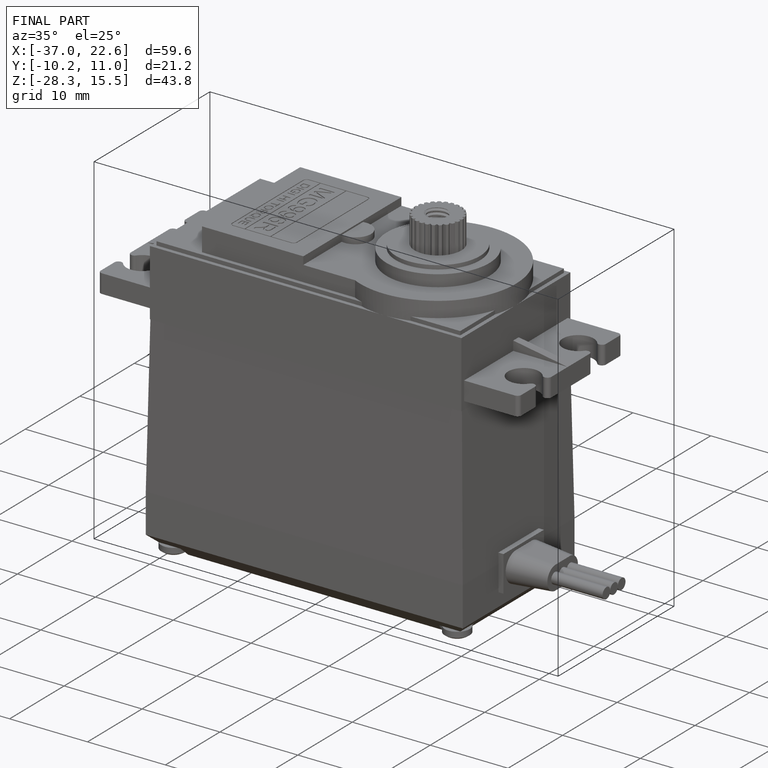
[diagram: finished part — iso view with bounding-box wireframe]
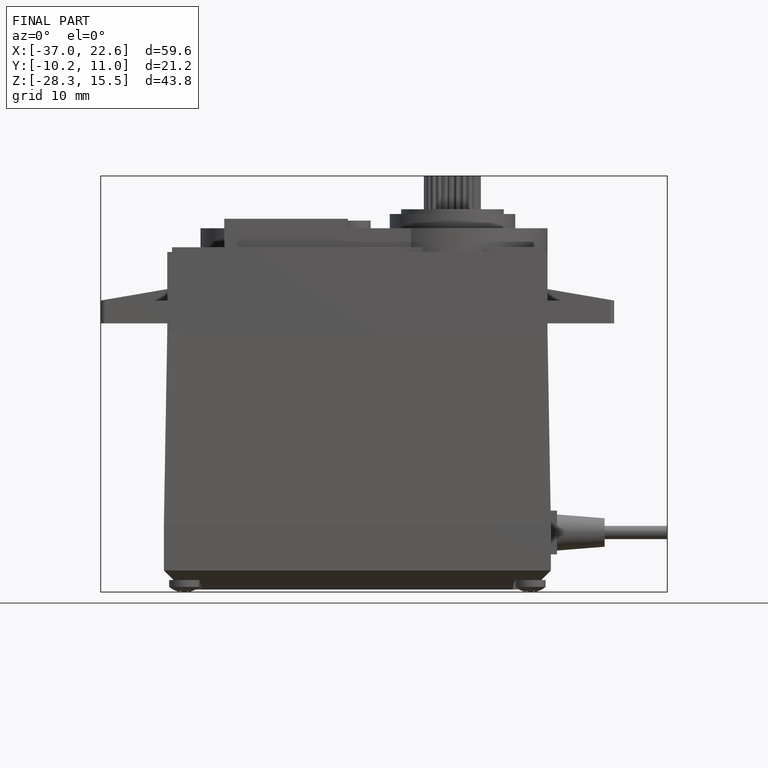
[diagram: finished part — front view with bounding-box wireframe]
